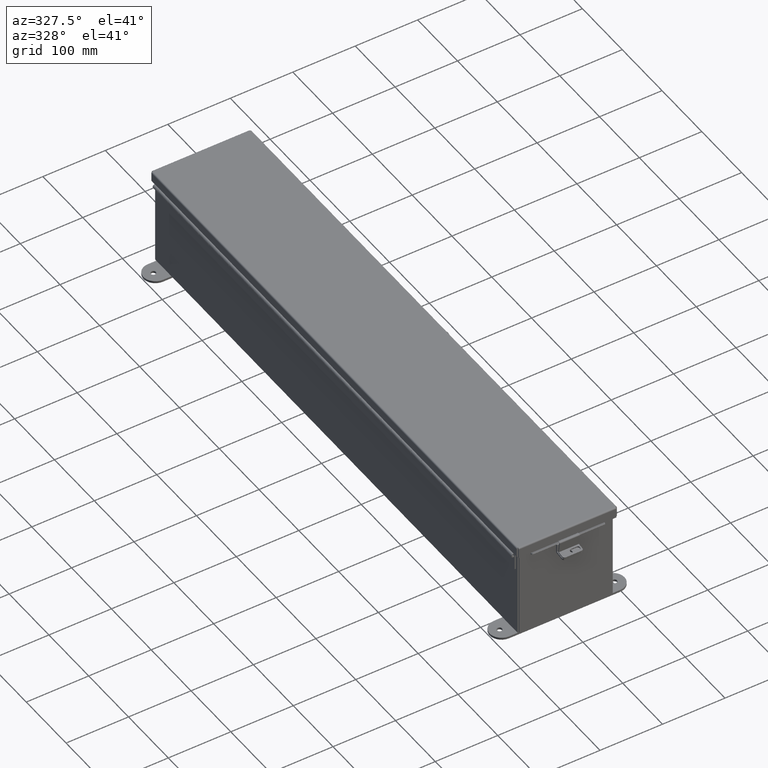
[diagram: clean part render]
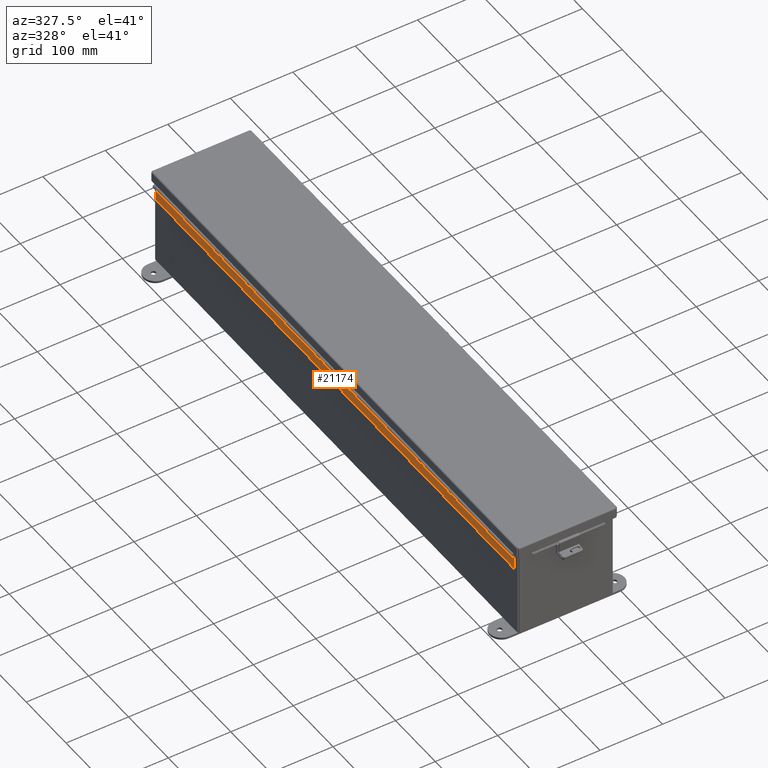
[diagram: same view with one face highlighted and labeled with its STEP entity id]
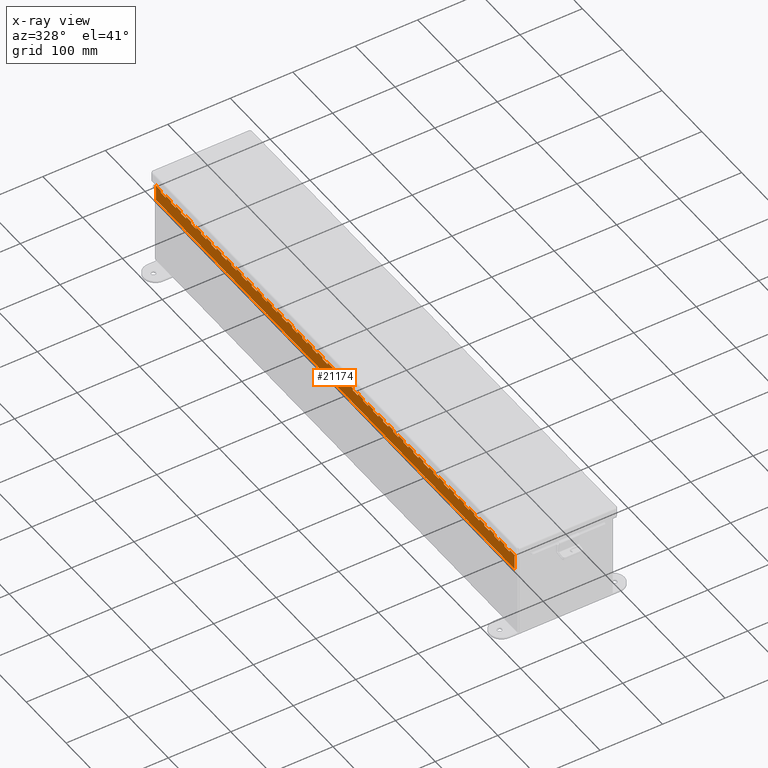
[diagram: x-ray of the same camera — body ghosted, the highlighted face saturated]
A machine part, auxiliary view. The second image highlights one B-rep face of the part: STEP entity #21174.
The next image is the same camera in x-ray: the body ghosted, the highlighted face saturated — about 0% of this face is hidden behind the body in this view.
In plain terms, the highlighted planar face has unit normal (1, -0, 0).
Its self-contained STEP definition (entity closure, byte-faithful):
#25 = VECTOR ( 'NONE', #17101, 39.37007874015748100 ) ;
#58 = LINE ( 'NONE', #17921, #22982 ) ;
#101 = ORIENTED_EDGE ( 'NONE', *, *, #4350, .F. ) ;
#114 = LINE ( 'NONE', #10625, #10822 ) ;
#118 = DIRECTION ( 'NONE',  ( -1.000000000000000000, 0.0000000000000000000, 0.0000000000000000000 ) ) ;
#140 = LINE ( 'NONE', #10224, #12299 ) ;
#147 = CARTESIAN_POINT ( 'NONE',  ( 0.1365000000000000100, 26.49999999999999300, -1.297218019791475500E-016 ) ) ;
#159 = VECTOR ( 'NONE', #24603, 39.37007874015748100 ) ;
#167 = CARTESIAN_POINT ( 'NONE',  ( 0.0000000000000000000, 31.99999999999998900, 2.042636892962690100E-016 ) ) ;
#175 = CARTESIAN_POINT ( 'NONE',  ( 0.2729999999999995200, 24.49999999999998900, 6.808789643208967800E-016 ) ) ;
#176 = CARTESIAN_POINT ( 'NONE',  ( 0.2730000000000000200, -22.00000000000000000, 1.497933721505972900E-015 ) ) ;
#179 = DIRECTION ( 'NONE',  ( 0.0000000000000000000, 1.000000000000000000, -6.810147738116168400E-017 ) ) ;
#189 = EDGE_CURVE ( 'NONE', #9809, #26513, #28344, .T. ) ;
#202 = CARTESIAN_POINT ( 'NONE',  ( 0.0000000000000000000, 26.99999999999998900, 5.447031714567174300E-016 ) ) ;
#220 = CARTESIAN_POINT ( 'NONE',  ( 0.1365000000000000100, 21.99999999999998900, 1.750243937338047600E-016 ) ) ;
#229 = CARTESIAN_POINT ( 'NONE',  ( 0.1365000000000000100, 30.49999999999998900, -4.020733877075062400E-016 ) ) ;
#272 = LINE ( 'NONE', #1149, #16397 ) ;
#291 = ORIENTED_EDGE ( 'NONE', *, *, #18941, .F. ) ;
#316 = VERTEX_POINT ( 'NONE', #17594 ) ;
#343 = VERTEX_POINT ( 'NONE', #29221 ) ;
#360 = DIRECTION ( 'NONE',  ( 0.0000000000000000000, 1.000000000000000000, -6.810147738116168400E-017 ) ) ;
#385 = VECTOR ( 'NONE', #6811, 39.37007874015748100 ) ;
#406 = VERTEX_POINT ( 'NONE', #6535 ) ;
#435 = DIRECTION ( 'NONE',  ( 0.0000000000000000000, 1.000000000000000000, -6.810147738116168400E-017 ) ) ;
#436 = ORIENTED_EDGE ( 'NONE', *, *, #20160, .F. ) ;
#448 = CARTESIAN_POINT ( 'NONE',  ( 0.2730000000000000200, 3.676451771755217300E-018, 0.0000000000000000000 ) ) ;
#450 = CARTESIAN_POINT ( 'NONE',  ( 0.0000000000000000000, 11.49999999999999300, 1.566021617938062600E-015 ) ) ;
#460 = DIRECTION ( 'NONE',  ( -1.000000000000000000, 0.0000000000000000000, 0.0000000000000000000 ) ) ;
#473 = DIRECTION ( 'NONE',  ( -1.000000000000000000, 0.0000000000000000000, 0.0000000000000000000 ) ) ;
#479 = EDGE_CURVE ( 'NONE', #17374, #17714, #19712, .T. ) ;
#507 = CARTESIAN_POINT ( 'NONE',  ( 0.2729999999999995200, 30.99999999999999300, 2.723515857283587100E-016 ) ) ;
#508 = VECTOR ( 'NONE', #29402, 39.37007874015748100 ) ;
#561 = VECTOR ( 'NONE', #26720, 39.37007874015748100 ) ;
#576 = VERTEX_POINT ( 'NONE', #13955 ) ;
#604 = ORIENTED_EDGE ( 'NONE', *, *, #18945, .F. ) ;
#609 = CARTESIAN_POINT ( 'NONE',  ( 0.1365000000000000100, -4.256342336322573700E-018, 1.673256896119361100E-015 ) ) ;
#626 = EDGE_CURVE ( 'NONE', #1206, #6858, #9984, .T. ) ;
#675 = CARTESIAN_POINT ( 'NONE',  ( 0.2729999999999995200, 12.99999999999999300, 1.497933721505972900E-015 ) ) ;
#681 = CARTESIAN_POINT ( 'NONE',  ( 0.0000000000000000000, 24.49999999999998900, 6.808789643208967800E-016 ) ) ;
#692 = VECTOR ( 'NONE', #15601, 39.37007874015748100 ) ;
#699 = CARTESIAN_POINT ( 'NONE',  ( 0.2729999999999995200, 1.499999999999992200, 2.246900582258959400E-015 ) ) ;
#713 = VECTOR ( 'NONE', #25238, 39.37007874015748100 ) ;
#749 = CARTESIAN_POINT ( 'NONE',  ( 0.2729999999999995200, 27.99999999999999300, 4.766152750246277500E-016 ) ) ;
#763 = CARTESIAN_POINT ( 'NONE',  ( 0.2729999999999995200, 27.49999999999999300, 4.766152750246277500E-016 ) ) ;
#783 = DIRECTION ( 'NONE',  ( -1.346685630679566500E-017, 1.000000000000000000, 0.0000000000000000000 ) ) ;
#821 = LINE ( 'NONE', #8443, #28431 ) ;
#869 = ORIENTED_EDGE ( 'NONE', *, *, #28266, .F. ) ;
#1015 = VECTOR ( 'NONE', #8700, 39.37007874015748100 ) ;
#1041 = EDGE_CURVE ( 'NONE', #20951, #8730, #22895, .T. ) ;
#1052 = ORIENTED_EDGE ( 'NONE', *, *, #24584, .F. ) ;
#1079 = VERTEX_POINT ( 'NONE', #3520 ) ;
#1109 = VECTOR ( 'NONE', #12950, 39.37007874015748100 ) ;
#1111 = DIRECTION ( 'NONE',  ( -1.000000000000000000, 0.0000000000000000000, 0.0000000000000000000 ) ) ;
#1113 = DIRECTION ( 'NONE',  ( 0.0000000000000000000, 1.000000000000000000, -6.810147738116168400E-017 ) ) ;
#1142 = VERTEX_POINT ( 'NONE', #12906 ) ;
#1148 = VERTEX_POINT ( 'NONE', #24449 ) ;
#1149 = CARTESIAN_POINT ( 'NONE',  ( 0.0000000000000000000, 22.99999999999999300, 8.170547571850760400E-016 ) ) ;
#1152 = CARTESIAN_POINT ( 'NONE',  ( 0.2729999999999995200, 22.49999999999999300, 8.170547571850760400E-016 ) ) ;
#1189 = LINE ( 'NONE', #24157, #6542 ) ;
#1206 = VERTEX_POINT ( 'NONE', #22234 ) ;
#1244 = EDGE_CURVE ( 'NONE', #28502, #8926, #7095, .T. ) ;
#1251 = CARTESIAN_POINT ( 'NONE',  ( 0.2729999999999995200, 31.49999999999999300, 2.042636892962690100E-016 ) ) ;
#1266 = VECTOR ( 'NONE', #3069, 39.37007874015748100 ) ;
#1299 = LINE ( 'NONE', #11196, #13473 ) ;
#1307 = LINE ( 'NONE', #14015, #14216 ) ;
#1320 = ORIENTED_EDGE ( 'NONE', *, *, #17619, .F. ) ;
#1350 = CARTESIAN_POINT ( 'NONE',  ( 0.2729999999999995200, 11.49999999999999300, 1.566021617938062600E-015 ) ) ;
#1351 = LINE ( 'NONE', #9821, #25030 ) ;
#1428 = VECTOR ( 'NONE', #25997, 39.37007874015748100 ) ;
#1510 = CARTESIAN_POINT ( 'NONE',  ( 0.0000000000000000000, 15.49999999999999100, 1.293670032209703900E-015 ) ) ;
#1570 = EDGE_CURVE ( 'NONE', #5348, #21947, #6002, .T. ) ;
#1654 = DIRECTION ( 'NONE',  ( -1.000000000000000000, 0.0000000000000000000, 0.0000000000000000000 ) ) ;
#1659 = ORIENTED_EDGE ( 'NONE', *, *, #15027, .T. ) ;
#1728 = EDGE_CURVE ( 'NONE', #5221, #15319, #25388, .T. ) ;
#1732 = VERTEX_POINT ( 'NONE', #26543 ) ;
#1771 = LINE ( 'NONE', #202, #19355 ) ;
#1800 = EDGE_CURVE ( 'NONE', #1826, #13469, #17120, .T. ) ;
#1812 = CARTESIAN_POINT ( 'NONE',  ( 0.2729999999999995200, 3.499999999999990700, 2.110724789394780000E-015 ) ) ;
#1820 = EDGE_CURVE ( 'NONE', #24632, #29169, #272, .T. ) ;
#1826 = VERTEX_POINT ( 'NONE', #1251 ) ;
#1877 = CARTESIAN_POINT ( 'NONE',  ( 0.0000000000000000000, 30.49999999999998900, 2.723515857283587100E-016 ) ) ;
#1910 = VECTOR ( 'NONE', #10030, 39.37007874015748100 ) ;
#1922 = CARTESIAN_POINT ( 'NONE',  ( 0.2729999999999995200, 15.99999999999999300, 1.293670032209703900E-015 ) ) ;
#1938 = CARTESIAN_POINT ( 'NONE',  ( 0.2730000000000000200, -9.000000000000000000, 6.127910678888071100E-016 ) ) ;
#1941 = CARTESIAN_POINT ( 'NONE',  ( 0.1365000000000000100, -4.256342336322573700E-018, 1.673256896119361100E-015 ) ) ;
#1956 = VERTEX_POINT ( 'NONE', #4043 ) ;
#2012 = EDGE_CURVE ( 'NONE', #15889, #15836, #6691, .T. ) ;
#2050 = DIRECTION ( 'NONE',  ( -1.000000000000000000, 0.0000000000000000000, -0.0000000000000000000 ) ) ;
#2060 = EDGE_CURVE ( 'NONE', #16999, #25906, #28941, .T. ) ;
#2067 = VERTEX_POINT ( 'NONE', #25095 ) ;
#2072 = CARTESIAN_POINT ( 'NONE',  ( 0.0000000000000000000, 6.999999999999993800, 1.906461100098511000E-015 ) ) ;
#2094 = ORIENTED_EDGE ( 'NONE', *, *, #25670, .F. ) ;
#2120 = VERTEX_POINT ( 'NONE', #9134 ) ;
#2192 = LINE ( 'NONE', #22685, #19751 ) ;
#2290 = LINE ( 'NONE', #2357, #25971 ) ;
#2298 = CARTESIAN_POINT ( 'NONE',  ( 0.2729999999999995200, 34.99999999999999300, 0.0000000000000000000 ) ) ;
#2357 = CARTESIAN_POINT ( 'NONE',  ( 0.1365000000000000100, -4.256342336322573700E-018, 1.673256896119361100E-015 ) ) ;
#2372 = VERTEX_POINT ( 'NONE', #3212 ) ;
#2388 = ORIENTED_EDGE ( 'NONE', *, *, #3868, .F. ) ;
#2445 = LINE ( 'NONE', #21113, #7808 ) ;
#2496 = ORIENTED_EDGE ( 'NONE', *, *, #25037, .F. ) ;
#2504 = CARTESIAN_POINT ( 'NONE',  ( 0.2729999999999995200, 26.99999999999998900, 5.447031714567174300E-016 ) ) ;
#2539 = VERTEX_POINT ( 'NONE', #14051 ) ;
#2573 = EDGE_CURVE ( 'NONE', #5297, #3210, #5262, .T. ) ;
#2581 = DIRECTION ( 'NONE',  ( -1.000000000000000000, 0.0000000000000000000, 0.0000000000000000000 ) ) ;
#2584 = LINE ( 'NONE', #17244, #26268 ) ;
#2592 = EDGE_CURVE ( 'NONE', #1732, #5865, #26766, .T. ) ;
#2595 = ORIENTED_EDGE ( 'NONE', *, *, #12680, .T. ) ;
#2603 = CARTESIAN_POINT ( 'NONE',  ( 0.2729999999999995200, 0.9999999999999947800, 2.314988478691049100E-015 ) ) ;
#2635 = VECTOR ( 'NONE', #3897, 39.37007874015748100 ) ;
#2715 = VECTOR ( 'NONE', #5776, 39.37007874015748100 ) ;
#2722 = ORIENTED_EDGE ( 'NONE', *, *, #20498, .F. ) ;
#2724 = LINE ( 'NONE', #1510, #20298 ) ;
#2734 = LINE ( 'NONE', #12690, #14197 ) ;
#2749 = CARTESIAN_POINT ( 'NONE',  ( 0.0000000000000000000, 34.99999999999999300, 0.0000000000000000000 ) ) ;
#2751 = EDGE_CURVE ( 'NONE', #10005, #13210, #11663, .T. ) ;
#2757 = CARTESIAN_POINT ( 'NONE',  ( 0.2730000000000000200, -23.99999999999999600, 1.634109514370152100E-015 ) ) ;
#2758 = EDGE_CURVE ( 'NONE', #10971, #9621, #10938, .T. ) ;
#2775 = CARTESIAN_POINT ( 'NONE',  ( 0.1365000000000000100, 34.99999999999999300, -7.102948122212973900E-016 ) ) ;
#2790 = VERTEX_POINT ( 'NONE', #28870 ) ;
#2844 = DIRECTION ( 'NONE',  ( -1.346685630679566500E-017, 1.000000000000000000, 0.0000000000000000000 ) ) ;
#2867 = VERTEX_POINT ( 'NONE', #22240 ) ;
#2878 = CARTESIAN_POINT ( 'NONE',  ( 0.0000000000000000000, 33.99999999999999300, 6.808789643208967800E-017 ) ) ;
#2883 = LINE ( 'NONE', #25407, #8968 ) ;
#2901 = CARTESIAN_POINT ( 'NONE',  ( 0.1365000000000000100, 23.49999999999999300, 7.454188731712149900E-017 ) ) ;
#2902 = FACE_OUTER_BOUND ( 'NONE', #21871, .T. ) ;
#2945 = VECTOR ( 'NONE', #18695, 39.37007874015748100 ) ;
#2962 = CARTESIAN_POINT ( 'NONE',  ( 0.0000000000000000000, 11.99999999999999500, 1.566021617938062600E-015 ) ) ;
#3026 = DIRECTION ( 'NONE',  ( -1.000000000000000000, 0.0000000000000000000, 0.0000000000000000000 ) ) ;
#3031 = VECTOR ( 'NONE', #23897, 39.37007874015748100 ) ;
#3032 = LINE ( 'NONE', #4021, #26714 ) ;
#3069 = DIRECTION ( 'NONE',  ( 0.0000000000000000000, 1.000000000000000000, -6.810147738116168400E-017 ) ) ;
#3087 = CARTESIAN_POINT ( 'NONE',  ( 0.2730000000000000200, -34.00000000000000000, 2.314988478691049100E-015 ) ) ;
#3110 = ORIENTED_EDGE ( 'NONE', *, *, #10259, .F. ) ;
#3120 = CARTESIAN_POINT ( 'NONE',  ( 0.1365000000000000100, 25.49999999999998900, -6.163390554705785700E-017 ) ) ;
#3162 = VECTOR ( 'NONE', #21583, 39.37007874015748100 ) ;
#3177 = VECTOR ( 'NONE', #16478, 39.37007874015748100 ) ;
#3181 = VECTOR ( 'NONE', #27653, 39.37007874015748100 ) ;
#3205 = VERTEX_POINT ( 'NONE', #29643 ) ;
#3210 = VERTEX_POINT ( 'NONE', #15890 ) ;
#3212 = CARTESIAN_POINT ( 'NONE',  ( 0.1365000000000000100, 1.999999999999994000, 1.537053941357038200E-015 ) ) ;
#3265 = CARTESIAN_POINT ( 'NONE',  ( 0.2729999999999995200, 6.499999999999992000, 1.906461100098511000E-015 ) ) ;
#3312 = EDGE_CURVE ( 'NONE', #9192, #5658, #25660, .T. ) ;
#3356 = EDGE_CURVE ( 'NONE', #19223, #14751, #6605, .T. ) ;
#3364 = CARTESIAN_POINT ( 'NONE',  ( 0.2730000000000000200, -13.00000000000000000, 8.851426536171658200E-016 ) ) ;
#3380 = EDGE_CURVE ( 'NONE', #6342, #26479, #5891, .T. ) ;
#3423 = DIRECTION ( 'NONE',  ( -1.346685630679566500E-017, 1.000000000000000000, 0.0000000000000000000 ) ) ;
#3444 = CARTESIAN_POINT ( 'NONE',  ( 0.1365000000000000100, -4.256342336322573700E-018, 1.673256896119361100E-015 ) ) ;
#3520 = CARTESIAN_POINT ( 'NONE',  ( 0.2729999999999995200, 16.49999999999998900, 1.225582135777614200E-015 ) ) ;
#3526 = CARTESIAN_POINT ( 'NONE',  ( 0.2730000000000000200, -26.00000000000000000, 1.770285307234331600E-015 ) ) ;
#3529 = EDGE_CURVE ( 'NONE', #28551, #406, #19873, .T. ) ;
#3538 = DIRECTION ( 'NONE',  ( -1.000000000000000000, 0.0000000000000000000, 0.0000000000000000000 ) ) ;
#3545 = ORIENTED_EDGE ( 'NONE', *, *, #28911, .T. ) ;
#3565 = EDGE_CURVE ( 'NONE', #22331, #22954, #18461, .T. ) ;
#3691 = CARTESIAN_POINT ( 'NONE',  ( 0.2729999999999995200, 13.99999999999999300, 1.429845825073883200E-015 ) ) ;
#3705 = VERTEX_POINT ( 'NONE', #15345 ) ;
#3730 = VECTOR ( 'NONE', #14271, 39.37007874015748100 ) ;
#3743 = VERTEX_POINT ( 'NONE', #24688 ) ;
#3748 = VECTOR ( 'NONE', #10341, 39.37007874015748100 ) ;
#3804 = EDGE_CURVE ( 'NONE', #17288, #12799, #18818, .T. ) ;
#3825 = DIRECTION ( 'NONE',  ( 0.0000000000000000000, 1.000000000000000000, -6.810147738116168400E-017 ) ) ;
#3863 = EDGE_CURVE ( 'NONE', #18612, #22772, #11225, .T. ) ;
#3868 = EDGE_CURVE ( 'NONE', #316, #4433, #5168, .T. ) ;
#3881 = ORIENTED_EDGE ( 'NONE', *, *, #9779, .F. ) ;
#3897 = DIRECTION ( 'NONE',  ( -1.000000000000000000, 0.0000000000000000000, 0.0000000000000000000 ) ) ;
#3905 = CARTESIAN_POINT ( 'NONE',  ( 0.2729999999999995200, 33.99999999999999300, 6.808789643208967800E-017 ) ) ;
#3911 = VECTOR ( 'NONE', #25608, 39.37007874015748100 ) ;
#3929 = CARTESIAN_POINT ( 'NONE',  ( 0.2730000000000000200, -5.000000000000000000, 3.404394821604483900E-016 ) ) ;
#3953 = ORIENTED_EDGE ( 'NONE', *, *, #13686, .F. ) ;
#3955 = CARTESIAN_POINT ( 'NONE',  ( 0.1365000000000000100, 13.49999999999999100, 7.554208516380182000E-016 ) ) ;
#3984 = DIRECTION ( 'NONE',  ( -1.000000000000000000, 0.0000000000000000000, 0.0000000000000000000 ) ) ;
#4016 = LINE ( 'NONE', #10390, #26969 ) ;
#4021 = CARTESIAN_POINT ( 'NONE',  ( 0.0000000000000000000, 25.99999999999999300, 6.127910678888071100E-016 ) ) ;
#4043 = CARTESIAN_POINT ( 'NONE',  ( 0.1365000000000000100, 9.499999999999989300, 1.027772437366377100E-015 ) ) ;
#4097 = ORIENTED_EDGE ( 'NONE', *, *, #28542, .F. ) ;
#4130 = DIRECTION ( 'NONE',  ( -1.000000000000000000, 0.0000000000000000000, 0.0000000000000000000 ) ) ;
#4139 = CARTESIAN_POINT ( 'NONE',  ( 0.1365000000000000100, 27.99999999999999300, -2.335844705531656100E-016 ) ) ;
#4180 = LINE ( 'NONE', #15134, #8812 ) ;
#4201 = EDGE_CURVE ( 'NONE', #22802, #16852, #14805, .T. ) ;
#4219 = DIRECTION ( 'NONE',  ( 0.0000000000000000000, 1.000000000000000000, -6.810147738116168400E-017 ) ) ;
#4238 = CARTESIAN_POINT ( 'NONE',  ( 0.2729999999999995200, 14.99999999999999100, 1.361757928641793600E-015 ) ) ;
#4280 = DIRECTION ( 'NONE',  ( -1.000000000000000000, 0.0000000000000000000, 0.0000000000000000000 ) ) ;
#4285 = EDGE_CURVE ( 'NONE', #26012, #4623, #1189, .T. ) ;
#4323 = ORIENTED_EDGE ( 'NONE', *, *, #28725, .T. ) ;
#4338 = VERTEX_POINT ( 'NONE', #3905 ) ;
#4350 = EDGE_CURVE ( 'NONE', #24651, #2790, #5135, .T. ) ;
#4361 = CARTESIAN_POINT ( 'NONE',  ( 0.1365000000000000100, 25.99999999999999300, -9.738151579084200900E-017 ) ) ;
#4381 = ORIENTED_EDGE ( 'NONE', *, *, #7371, .F. ) ;
#4433 = VERTEX_POINT ( 'NONE', #27066 ) ;
#4441 = CARTESIAN_POINT ( 'NONE',  ( 0.0000000000000000000, 13.49999999999999100, 1.429845825073883200E-015 ) ) ;
#4454 = DIRECTION ( 'NONE',  ( -1.346685630679566500E-017, 1.000000000000000000, 0.0000000000000000000 ) ) ;
#4472 = CARTESIAN_POINT ( 'NONE',  ( 0.2730000000000000200, -31.00000000000000000, 2.110724789394780000E-015 ) ) ;
#4482 = VECTOR ( 'NONE', #19506, 39.37007874015748100 ) ;
#4547 = VECTOR ( 'NONE', #7505, 39.37007874015748100 ) ;
#4558 = DIRECTION ( 'NONE',  ( -1.000000000000000000, 0.0000000000000000000, 0.0000000000000000000 ) ) ;
#4606 = VECTOR ( 'NONE', #8655, 39.37007874015748100 ) ;
#4611 = LINE ( 'NONE', #16796, #28283 ) ;
#4623 = VERTEX_POINT ( 'NONE', #20998 ) ;
#4628 = EDGE_CURVE ( 'NONE', #22125, #26308, #15914, .T. ) ;
#4658 = CARTESIAN_POINT ( 'NONE',  ( 0.1365000000000000100, 6.499999999999992000, 1.232036126662645700E-015 ) ) ;
#4659 = LINE ( 'NONE', #11674, #28321 ) ;
#4680 = CARTESIAN_POINT ( 'NONE',  ( 0.1365000000000000100, -4.256342336322573700E-018, 1.673256896119361100E-015 ) ) ;
#4688 = LINE ( 'NONE', #19573, #27649 ) ;
#4772 = EDGE_CURVE ( 'NONE', #15349, #27269, #140, .T. ) ;
#4833 = DIRECTION ( 'NONE',  ( -1.000000000000000000, 0.0000000000000000000, 0.0000000000000000000 ) ) ;
#4902 = VECTOR ( 'NONE', #26749, 39.37007874015748100 ) ;
#4939 = VECTOR ( 'NONE', #5569, 39.37007874015748100 ) ;
#4962 = ORIENTED_EDGE ( 'NONE', *, *, #20087, .T. ) ;
#5135 = LINE ( 'NONE', #10790, #15879 ) ;
#5168 = LINE ( 'NONE', #22773, #22721 ) ;
#5221 = VERTEX_POINT ( 'NONE', #7622 ) ;
#5232 = CARTESIAN_POINT ( 'NONE',  ( 0.1365000000000000100, -4.256342336322573700E-018, 1.673256896119361100E-015 ) ) ;
#5262 = LINE ( 'NONE', #18792, #10583 ) ;
#5289 = VECTOR ( 'NONE', #4454, 39.37007874015748100 ) ;
#5290 = CARTESIAN_POINT ( 'NONE',  ( 0.1365000000000000100, -4.256342336322573700E-018, 1.673256896119361100E-015 ) ) ;
#5297 = VERTEX_POINT ( 'NONE', #5616 ) ;
#5312 = ORIENTED_EDGE ( 'NONE', *, *, #22720, .F. ) ;
#5315 = CARTESIAN_POINT ( 'NONE',  ( 0.1365000000000000100, 6.999999999999993800, 1.196546554451229800E-015 ) ) ;
#5346 = CARTESIAN_POINT ( 'NONE',  ( 0.2729999999999995200, 2.999999999999993300, 2.178812685826869700E-015 ) ) ;
#5348 = VERTEX_POINT ( 'NONE', #26490 ) ;
#5366 = LINE ( 'NONE', #16199, #22200 ) ;
#5374 = LINE ( 'NONE', #23141, #29034 ) ;
#5415 = LINE ( 'NONE', #3929, #16166 ) ;
#5422 = VECTOR ( 'NONE', #18553, 39.37007874015748100 ) ;
#5457 = CARTESIAN_POINT ( 'NONE',  ( 0.2730000000000000200, -21.00000000000000000, 1.429845825073883200E-015 ) ) ;
#5540 = EDGE_CURVE ( 'NONE', #17021, #6357, #1299, .T. ) ;
#5548 = VECTOR ( 'NONE', #6660, 39.37007874015748100 ) ;
#5562 = CARTESIAN_POINT ( 'NONE',  ( 0.0000000000000000000, 15.99999999999999300, 1.293670032209703900E-015 ) ) ;
#5567 = VECTOR ( 'NONE', #16334, 39.37007874015748100 ) ;
#5569 = DIRECTION ( 'NONE',  ( -1.346685630679566500E-017, 1.000000000000000000, 0.0000000000000000000 ) ) ;
#5581 = ORIENTED_EDGE ( 'NONE', *, *, #14967, .T. ) ;
#5616 = CARTESIAN_POINT ( 'NONE',  ( 0.1365000000000000100, 23.99999999999999300, 3.882143897148137200E-017 ) ) ;
#5622 = VERTEX_POINT ( 'NONE', #2298 ) ;
#5653 = ORIENTED_EDGE ( 'NONE', *, *, #4772, .T. ) ;
#5658 = VERTEX_POINT ( 'NONE', #13903 ) ;
#5716 = VERTEX_POINT ( 'NONE', #20934 ) ;
#5727 = ORIENTED_EDGE ( 'NONE', *, *, #9381, .T. ) ;
#5759 = CARTESIAN_POINT ( 'NONE',  ( 0.2729999999999995200, 28.99999999999999300, 4.085273785925380200E-016 ) ) ;
#5773 = VERTEX_POINT ( 'NONE', #11993 ) ;
#5776 = DIRECTION ( 'NONE',  ( -1.000000000000000000, 0.0000000000000000000, 0.0000000000000000000 ) ) ;
#5777 = CARTESIAN_POINT ( 'NONE',  ( 0.2729999999999995200, 18.99999999999999300, 1.089406342913434900E-015 ) ) ;
#5785 = LINE ( 'NONE', #20235, #16556 ) ;
#5802 = VECTOR ( 'NONE', #15869, 39.37007874015748100 ) ;
#5838 = EDGE_CURVE ( 'NONE', #28820, #22331, #23873, .T. ) ;
#5865 = VERTEX_POINT ( 'NONE', #9887 ) ;
#5884 = VERTEX_POINT ( 'NONE', #12387 ) ;
#5891 = LINE ( 'NONE', #14181, #29584 ) ;
#5907 = VECTOR ( 'NONE', #16902, 39.37007874015748100 ) ;
#5955 = CARTESIAN_POINT ( 'NONE',  ( 0.2729999999999995200, 26.49999999999999300, 5.447031714567174300E-016 ) ) ;
#5956 = DIRECTION ( 'NONE',  ( -1.000000000000000000, 0.0000000000000000000, 0.0000000000000000000 ) ) ;
#5962 = EDGE_CURVE ( 'NONE', #343, #9809, #14895, .T. ) ;
#6002 = LINE ( 'NONE', #3087, #11376 ) ;
#6092 = LINE ( 'NONE', #7866, #25 ) ;
#6117 = EDGE_CURVE ( 'NONE', #5716, #17110, #9851, .T. ) ;
#6143 = CARTESIAN_POINT ( 'NONE',  ( 0.2729999999999995200, 4.499999999999989300, 2.042636892962690400E-015 ) ) ;
#6159 = VERTEX_POINT ( 'NONE', #15834 ) ;
#6189 = ORIENTED_EDGE ( 'NONE', *, *, #1041, .F. ) ;
#6221 = ORIENTED_EDGE ( 'NONE', *, *, #7256, .F. ) ;
#6226 = LINE ( 'NONE', #13153, #159 ) ;
#6227 = EDGE_CURVE ( 'NONE', #576, #406, #26016, .T. ) ;
#6272 = VECTOR ( 'NONE', #27688, 39.37007874015748100 ) ;
#6342 = VERTEX_POINT ( 'NONE', #507 ) ;
#6357 = VERTEX_POINT ( 'NONE', #2901 ) ;
#6373 = LINE ( 'NONE', #14563, #28626 ) ;
#6407 = CARTESIAN_POINT ( 'NONE',  ( 0.1365000000000000100, 18.99999999999999300, 3.793288258772897100E-016 ) ) ;
#6437 = CARTESIAN_POINT ( 'NONE',  ( 0.2729999999999995200, 4.999999999999991100, 2.042636892962690400E-015 ) ) ;
#6509 = ORIENTED_EDGE ( 'NONE', *, *, #6559, .T. ) ;
#6517 = LINE ( 'NONE', #13556, #5802 ) ;
#6535 = CARTESIAN_POINT ( 'NONE',  ( 0.1365000000000000100, 12.49999999999999100, 8.235087480701079700E-016 ) ) ;
#6542 = VECTOR ( 'NONE', #28766, 39.37007874015748100 ) ;
#6544 = CARTESIAN_POINT ( 'NONE',  ( 0.1365000000000000100, 7.999999999999993800, 1.128445077070068200E-015 ) ) ;
#6550 = DIRECTION ( 'NONE',  ( -1.346685630679566500E-017, 1.000000000000000000, 0.0000000000000000000 ) ) ;
#6559 = EDGE_CURVE ( 'NONE', #316, #9655, #12696, .T. ) ;
#6574 = LINE ( 'NONE', #28443, #11952 ) ;
#6605 = LINE ( 'NONE', #14076, #18845 ) ;
#6641 = CARTESIAN_POINT ( 'NONE',  ( 0.1365000000000000100, 4.499999999999989300, 1.368211919526825500E-015 ) ) ;
#6660 = DIRECTION ( 'NONE',  ( -1.000000000000000000, 0.0000000000000000000, 0.0000000000000000000 ) ) ;
#6691 = LINE ( 'NONE', #27104, #12072 ) ;
#6721 = DIRECTION ( 'NONE',  ( -1.000000000000000000, 0.0000000000000000000, 0.0000000000000000000 ) ) ;
#6728 = DIRECTION ( 'NONE',  ( -1.346685630679566500E-017, 1.000000000000000000, 0.0000000000000000000 ) ) ;
#6755 = LINE ( 'NONE', #13285, #692 ) ;
#6787 = VECTOR ( 'NONE', #118, 39.37007874015748100 ) ;
#6811 = DIRECTION ( 'NONE',  ( 0.0000000000000000000, 1.000000000000000000, -6.810147738116168400E-017 ) ) ;
#6823 = VECTOR ( 'NONE', #27421, 39.37007874015748100 ) ;
#6844 = DIRECTION ( 'NONE',  ( 0.0000000000000000000, 1.000000000000000000, -6.810147738116168400E-017 ) ) ;
#6858 = VERTEX_POINT ( 'NONE', #25741 ) ;
#6905 = CARTESIAN_POINT ( 'NONE',  ( 0.1365000000000000100, 16.49999999999998900, 5.511571623417492600E-016 ) ) ;
#6955 = CARTESIAN_POINT ( 'NONE',  ( 0.1365000000000000100, 3.999999999999992500, 1.400850986594715000E-015 ) ) ;
#7009 = CARTESIAN_POINT ( 'NONE',  ( 0.2730000000000000200, -7.000000000000000000, 4.766152750246277500E-016 ) ) ;
#7015 = EDGE_CURVE ( 'NONE', #22050, #8926, #11224, .T. ) ;
#7060 = VERTEX_POINT ( 'NONE', #28710 ) ;
#7095 = LINE ( 'NONE', #10889, #1015 ) ;
#7170 = VECTOR ( 'NONE', #20710, 39.37007874015748100 ) ;
#7227 = LINE ( 'NONE', #13393, #24090 ) ;
#7244 = CARTESIAN_POINT ( 'NONE',  ( 0.0000000000000000000, 24.99999999999999300, 6.808789643208967800E-016 ) ) ;
#7256 = EDGE_CURVE ( 'NONE', #28423, #7921, #29164, .T. ) ;
#7298 = ORIENTED_EDGE ( 'NONE', *, *, #21381, .F. ) ;
#7318 = VECTOR ( 'NONE', #8935, 39.37007874015748100 ) ;
#7341 = CARTESIAN_POINT ( 'NONE',  ( 0.2730000000000000200, -15.00000000000000000, 1.021318446481345200E-015 ) ) ;
#7353 = DIRECTION ( 'NONE',  ( -1.000000000000000000, 0.0000000000000000000, 0.0000000000000000000 ) ) ;
#7371 = EDGE_CURVE ( 'NONE', #1079, #11189, #14804, .T. ) ;
#7447 = ORIENTED_EDGE ( 'NONE', *, *, #21938, .F. ) ;
#7457 = EDGE_CURVE ( 'NONE', #28820, #9375, #12634, .T. ) ;
#7505 = DIRECTION ( 'NONE',  ( -1.000000000000000000, 0.0000000000000000000, 0.0000000000000000000 ) ) ;
#7511 = VECTOR ( 'NONE', #13561, 39.37007874015748100 ) ;
#7550 = ORIENTED_EDGE ( 'NONE', *, *, #1728, .F. ) ;
#7578 = LINE ( 'NONE', #11491, #19067 ) ;
#7622 = CARTESIAN_POINT ( 'NONE',  ( 0.2729999999999995200, 13.49999999999999100, 1.429845825073883200E-015 ) ) ;
#7687 = DIRECTION ( 'NONE',  ( -1.346685630679566500E-017, 1.000000000000000000, 0.0000000000000000000 ) ) ;
#7706 = VECTOR ( 'NONE', #11603, 39.37007874015748100 ) ;
#7741 = CARTESIAN_POINT ( 'NONE',  ( 0.2729999999999995200, 20.99999999999999600, 9.532305500492555000E-016 ) ) ;
#7794 = VERTEX_POINT ( 'NONE', #3955 ) ;
#7808 = VECTOR ( 'NONE', #14284, 39.37007874015748100 ) ;
#7825 = CARTESIAN_POINT ( 'NONE',  ( 0.1365000000000000100, 22.99999999999999300, 1.069229163526429400E-016 ) ) ;
#7849 = CARTESIAN_POINT ( 'NONE',  ( 0.0000000000000000000, 12.49999999999999100, 1.497933721505972900E-015 ) ) ;
#7851 = CARTESIAN_POINT ( 'NONE',  ( 0.1365000000000000100, -4.256342336322573700E-018, 1.673256896119361100E-015 ) ) ;
#7855 = ORIENTED_EDGE ( 'NONE', *, *, #7998, .F. ) ;
#7858 = DIRECTION ( 'NONE',  ( -1.000000000000000000, 0.0000000000000000000, 0.0000000000000000000 ) ) ;
#7866 = CARTESIAN_POINT ( 'NONE',  ( 0.1365000000000000100, -4.256342336322573700E-018, 1.673256896119361100E-015 ) ) ;
#7921 = VERTEX_POINT ( 'NONE', #6641 ) ;
#7940 = EDGE_CURVE ( 'NONE', #27628, #1206, #6517, .T. ) ;
#7956 = CARTESIAN_POINT ( 'NONE',  ( 0.0000000000000000000, 32.99999999999999300, 1.361757928641793600E-016 ) ) ;
#7970 = DIRECTION ( 'NONE',  ( -1.346685630679566500E-017, 1.000000000000000000, 0.0000000000000000000 ) ) ;
#7995 = VECTOR ( 'NONE', #1113, 39.37007874015748100 ) ;
#7998 = EDGE_CURVE ( 'NONE', #20183, #1956, #10445, .T. ) ;
#8000 = CARTESIAN_POINT ( 'NONE',  ( 0.1365000000000000100, 28.99999999999999300, -3.016859479343272100E-016 ) ) ;
#8003 = LINE ( 'NONE', #19187, #1910 ) ;
#8040 = CARTESIAN_POINT ( 'NONE',  ( 0.1365000000000000100, -4.256342336322573700E-018, 1.673256896119361100E-015 ) ) ;
#8090 = EDGE_CURVE ( 'NONE', #26134, #20787, #19798, .T. ) ;
#8152 = CARTESIAN_POINT ( 'NONE',  ( 0.1365000000000000100, 20.99999999999999600, 2.431258711149660700E-016 ) ) ;
#8228 = ORIENTED_EDGE ( 'NONE', *, *, #2758, .F. ) ;
#8315 = CARTESIAN_POINT ( 'NONE',  ( 0.1365000000000000100, 34.49999999999999300, -6.744249734358649500E-016 ) ) ;
#8382 = DIRECTION ( 'NONE',  ( 0.0000000000000000000, 1.000000000000000000, -6.810147738116168400E-017 ) ) ;
#8443 = CARTESIAN_POINT ( 'NONE',  ( 0.0000000000000000000, 16.49999999999998900, 1.225582135777614200E-015 ) ) ;
#8487 = ORIENTED_EDGE ( 'NONE', *, *, #11006, .T. ) ;
#8525 = ORIENTED_EDGE ( 'NONE', *, *, #14210, .F. ) ;
#8572 = CARTESIAN_POINT ( 'NONE',  ( 0.2729999999999995200, 17.99999999999999300, 1.157494239345524500E-015 ) ) ;
#8577 = CARTESIAN_POINT ( 'NONE',  ( 0.2729999999999995200, 14.49999999999998900, 1.361757928641793600E-015 ) ) ;
#8590 = VERTEX_POINT ( 'NONE', #2504 ) ;
#8655 = DIRECTION ( 'NONE',  ( -1.000000000000000000, 0.0000000000000000000, 0.0000000000000000000 ) ) ;
#8684 = EDGE_CURVE ( 'NONE', #5884, #343, #5415, .T. ) ;
#8688 = DIRECTION ( 'NONE',  ( -1.000000000000000000, 0.0000000000000000000, 0.0000000000000000000 ) ) ;
#8700 = DIRECTION ( 'NONE',  ( -1.000000000000000000, 0.0000000000000000000, 0.0000000000000000000 ) ) ;
#8717 = VECTOR ( 'NONE', #26110, 39.37007874015748100 ) ;
#8730 = VERTEX_POINT ( 'NONE', #4139 ) ;
#8781 = DIRECTION ( 'NONE',  ( 0.0000000000000000000, 1.000000000000000000, -6.810147738116168400E-017 ) ) ;
#8812 = VECTOR ( 'NONE', #28891, 39.37007874015748100 ) ;
#8874 = EDGE_CURVE ( 'NONE', #21012, #23697, #12557, .T. ) ;
#8892 = VERTEX_POINT ( 'NONE', #6905 ) ;
#8926 = VERTEX_POINT ( 'NONE', #27690 ) ;
#8935 = DIRECTION ( 'NONE',  ( -1.346685630679566500E-017, 1.000000000000000000, 0.0000000000000000000 ) ) ;
#8940 = VERTEX_POINT ( 'NONE', #14027 ) ;
#8968 = VECTOR ( 'NONE', #18496, 39.37007874015748100 ) ;
#8971 = ORIENTED_EDGE ( 'NONE', *, *, #5540, .T. ) ;
#9095 = ORIENTED_EDGE ( 'NONE', *, *, #24607, .F. ) ;
#9130 = ORIENTED_EDGE ( 'NONE', *, *, #17726, .F. ) ;
#9134 = CARTESIAN_POINT ( 'NONE',  ( 0.1365000000000000100, 10.99999999999999500, 9.241406449265830300E-016 ) ) ;
#9192 = VERTEX_POINT ( 'NONE', #8000 ) ;
#9253 = LINE ( 'NONE', #7851, #3162 ) ;
#9282 = CARTESIAN_POINT ( 'NONE',  ( 0.0000000000000000000, 2.999999999999993300, 2.178812685826869700E-015 ) ) ;
#9314 = VECTOR ( 'NONE', #3825, 39.37007874015748100 ) ;
#9375 = VERTEX_POINT ( 'NONE', #13288 ) ;
#9378 = CARTESIAN_POINT ( 'NONE',  ( 0.2729999999999995200, 1.999999999999994000, 2.246900582258959400E-015 ) ) ;
#9381 = EDGE_CURVE ( 'NONE', #16999, #5773, #58, .T. ) ;
#9460 = ORIENTED_EDGE ( 'NONE', *, *, #28402, .F. ) ;
#9462 = LINE ( 'NONE', #27420, #26348 ) ;
#9478 = CARTESIAN_POINT ( 'NONE',  ( 0.1365000000000000100, 8.499999999999991100, 1.095860333798466800E-015 ) ) ;
#9605 = DIRECTION ( 'NONE',  ( -1.000000000000000000, 0.0000000000000000000, 0.0000000000000000000 ) ) ;
#9621 = VERTEX_POINT ( 'NONE', #25751 ) ;
#9643 = DIRECTION ( 'NONE',  ( -1.346685630679566500E-017, 1.000000000000000000, 0.0000000000000000000 ) ) ;
#9655 = VERTEX_POINT ( 'NONE', #28066 ) ;
#9723 = LINE ( 'NONE', #15627, #27338 ) ;
#9779 = EDGE_CURVE ( 'NONE', #15643, #13291, #6092, .T. ) ;
#9809 = VERTEX_POINT ( 'NONE', #12566 ) ;
#9821 = CARTESIAN_POINT ( 'NONE',  ( 0.0000000000000000000, 9.999999999999991100, 1.702197410802242200E-015 ) ) ;
#9841 = VECTOR ( 'NONE', #28614, 39.37007874015748100 ) ;
#9851 = LINE ( 'NONE', #18055, #22046 ) ;
#9860 = CARTESIAN_POINT ( 'NONE',  ( 0.2729999999999995200, 17.49999999999999300, 1.157494239345524500E-015 ) ) ;
#9887 = CARTESIAN_POINT ( 'NONE',  ( 0.2729999999999995200, 19.99999999999999300, 1.021318446481345200E-015 ) ) ;
#9897 = ORIENTED_EDGE ( 'NONE', *, *, #28319, .F. ) ;
#9921 = CARTESIAN_POINT ( 'NONE',  ( 0.2730000000000000200, -27.00000000000000000, 1.838373203666421300E-015 ) ) ;
#9975 = CARTESIAN_POINT ( 'NONE',  ( 0.2730000000000000200, -2.000000000000000000, 1.361757928641793600E-016 ) ) ;
#9984 = LINE ( 'NONE', #7244, #3911 ) ;
#10005 = VERTEX_POINT ( 'NONE', #6437 ) ;
#10030 = DIRECTION ( 'NONE',  ( 0.0000000000000000000, 1.000000000000000000, -6.810147738116168400E-017 ) ) ;
#10036 = EDGE_CURVE ( 'NONE', #8940, #4623, #25479, .T. ) ;
#10055 = ORIENTED_EDGE ( 'NONE', *, *, #28625, .F. ) ;
#10102 = CARTESIAN_POINT ( 'NONE',  ( 1.136500000000000100, 0.0000000000000000000, 0.0000000000000000000 ) ) ;
#10115 = ORIENTED_EDGE ( 'NONE', *, *, #13132, .T. ) ;
#10132 = ORIENTED_EDGE ( 'NONE', *, *, #20768, .F. ) ;
#10143 = CARTESIAN_POINT ( 'NONE',  ( 0.1365000000000000100, 32.99999999999999300, -5.740918574589741900E-016 ) ) ;
#10169 = VECTOR ( 'NONE', #14490, 39.37007874015748100 ) ;
#10202 = LINE ( 'NONE', #27960, #27097 ) ;
#10208 = VECTOR ( 'NONE', #12461, 39.37007874015748100 ) ;
#10210 = ORIENTED_EDGE ( 'NONE', *, *, #479, .F. ) ;
#10224 = CARTESIAN_POINT ( 'NONE',  ( 0.0000000000000000000, 28.49999999999999300, 4.085273785925380200E-016 ) ) ;
#10241 = CARTESIAN_POINT ( 'NONE',  ( 0.2729999999999995200, 9.499999999999989300, 1.702197410802242200E-015 ) ) ;
#10259 = EDGE_CURVE ( 'NONE', #2539, #22934, #19009, .T. ) ;
#10293 = ORIENTED_EDGE ( 'NONE', *, *, #3312, .F. ) ;
#10308 = ORIENTED_EDGE ( 'NONE', *, *, #29710, .T. ) ;
#10325 = DIRECTION ( 'NONE',  ( -1.000000000000000000, 0.0000000000000000000, 0.0000000000000000000 ) ) ;
#10338 = EDGE_CURVE ( 'NONE', #24587, #7060, #5366, .T. ) ;
#10341 = DIRECTION ( 'NONE',  ( -1.346685630679566500E-017, 1.000000000000000000, 0.0000000000000000000 ) ) ;
#10367 = EDGE_CURVE ( 'NONE', #22125, #13001, #4659, .T. ) ;
#10371 = DIRECTION ( 'NONE',  ( 1.000000000000000000, 0.0000000000000000000, 0.0000000000000000000 ) ) ;
#10381 = VERTEX_POINT ( 'NONE', #11769 ) ;
#10390 = CARTESIAN_POINT ( 'NONE',  ( 0.1365000000000000100, -4.256342336322573700E-018, 1.673256896119361100E-015 ) ) ;
#10418 = CARTESIAN_POINT ( 'NONE',  ( 0.2729999999999995200, 30.49999999999998900, 2.723515857283587100E-016 ) ) ;
#10430 = ORIENTED_EDGE ( 'NONE', *, *, #25722, .F. ) ;
#10445 = LINE ( 'NONE', #15980, #21926 ) ;
#10480 = DIRECTION ( 'NONE',  ( -1.000000000000000000, 0.0000000000000000000, 0.0000000000000000000 ) ) ;
#10494 = VECTOR ( 'NONE', #12558, 39.37007874015748100 ) ;
#10522 = LINE ( 'NONE', #17195, #4482 ) ;
#10544 = LINE ( 'NONE', #17093, #9841 ) ;
#10582 = DIRECTION ( 'NONE',  ( -1.000000000000000000, 0.0000000000000000000, 0.0000000000000000000 ) ) ;
#10583 = VECTOR ( 'NONE', #435, 39.37007874015748100 ) ;
#10611 = CARTESIAN_POINT ( 'NONE',  ( 0.1365000000000000100, -4.256342336322573700E-018, 1.673256896119361100E-015 ) ) ;
#10613 = VERTEX_POINT ( 'NONE', #5955 ) ;
#10616 = DIRECTION ( 'NONE',  ( -1.000000000000000000, 0.0000000000000000000, 0.0000000000000000000 ) ) ;
#10625 = CARTESIAN_POINT ( 'NONE',  ( 0.0000000000000000000, 8.499999999999991100, 1.770285307234331600E-015 ) ) ;
#10649 = EDGE_CURVE ( 'NONE', #1826, #15060, #26516, .T. ) ;
#10652 = VERTEX_POINT ( 'NONE', #11051 ) ;
#10670 = CARTESIAN_POINT ( 'NONE',  ( 0.0000000000000000000, 14.99999999999999100, 1.361757928641793600E-015 ) ) ;
#10762 = CARTESIAN_POINT ( 'NONE',  ( 0.0000000000000000000, 5.499999999999992900, 1.974548996530600700E-015 ) ) ;
#10775 = ORIENTED_EDGE ( 'NONE', *, *, #17300, .T. ) ;
#10779 = CARTESIAN_POINT ( 'NONE',  ( 0.0000000000000000000, 33.49999999999999300, 6.808789643208967800E-017 ) ) ;
#10790 = CARTESIAN_POINT ( 'NONE',  ( 0.2730000000000000200, -28.00000000000000000, 1.906461100098511000E-015 ) ) ;
#10822 = VECTOR ( 'NONE', #22167, 39.37007874015748100 ) ;
#10848 = EDGE_CURVE ( 'NONE', #15889, #1142, #16086, .T. ) ;
#10852 = CARTESIAN_POINT ( 'NONE',  ( 0.1365000000000000100, 0.9999999999999947800, 1.605155418738199900E-015 ) ) ;
#10889 = CARTESIAN_POINT ( 'NONE',  ( 0.0000000000000000000, 7.499999999999992000, 1.838373203666421300E-015 ) ) ;
#10938 = LINE ( 'NONE', #3526, #28536 ) ;
#10953 = LINE ( 'NONE', #10670, #4902 ) ;
#10971 = VERTEX_POINT ( 'NONE', #18998 ) ;
#10981 = ORIENTED_EDGE ( 'NONE', *, *, #8874, .F. ) ;
#10986 = VECTOR ( 'NONE', #17183, 39.37007874015748100 ) ;
#10994 = CARTESIAN_POINT ( 'NONE',  ( 0.2730000000000000200, -17.00000000000000000, 1.157494239345524500E-015 ) ) ;
#11006 = EDGE_CURVE ( 'NONE', #11975, #23697, #6373, .T. ) ;
#11012 = VECTOR ( 'NONE', #13734, 39.37007874015748100 ) ;
#11022 = DIRECTION ( 'NONE',  ( -1.346685630679566500E-017, 1.000000000000000000, 0.0000000000000000000 ) ) ;
#11038 = CARTESIAN_POINT ( 'NONE',  ( 0.1364999999999999000, 0.0000000000000000000, 0.0000000000000000000 ) ) ;
#11051 = CARTESIAN_POINT ( 'NONE',  ( 0.1365000000000000100, 15.49999999999999100, 6.192450587738388400E-016 ) ) ;
#11098 = DIRECTION ( 'NONE',  ( -1.346685630679566500E-017, 1.000000000000000000, 0.0000000000000000000 ) ) ;
#11113 = ORIENTED_EDGE ( 'NONE', *, *, #1244, .T. ) ;
#11145 = CARTESIAN_POINT ( 'NONE',  ( 0.1365000000000000100, -4.256342336322573700E-018, 1.673256896119361100E-015 ) ) ;
#11167 = VERTEX_POINT ( 'NONE', #10418 ) ;
#11189 = VERTEX_POINT ( 'NONE', #15236 ) ;
#11196 = CARTESIAN_POINT ( 'NONE',  ( 0.0000000000000000000, 23.49999999999999300, 7.489668607529864600E-016 ) ) ;
#11224 = LINE ( 'NONE', #14871, #10494 ) ;
#11225 = LINE ( 'NONE', #11228, #18080 ) ;
#11228 = CARTESIAN_POINT ( 'NONE',  ( 0.1365000000000000100, -4.256342336322573700E-018, 1.673256896119361100E-015 ) ) ;
#11255 = LINE ( 'NONE', #3364, #16655 ) ;
#11376 = VECTOR ( 'NONE', #783, 39.37007874015748100 ) ;
#11418 = ORIENTED_EDGE ( 'NONE', *, *, #24031, .F. ) ;
#11447 = ORIENTED_EDGE ( 'NONE', *, *, #3529, .T. ) ;
#11478 = EDGE_CURVE ( 'NONE', #14566, #19234, #16405, .T. ) ;
#11491 = CARTESIAN_POINT ( 'NONE',  ( 0.0000000000000000000, 3.499999999999990700, 2.110724789394780000E-015 ) ) ;
#11547 = VERTEX_POINT ( 'NONE', #24011 ) ;
#11603 = DIRECTION ( 'NONE',  ( 0.0000000000000000000, 1.000000000000000000, -6.810147738116168400E-017 ) ) ;
#11610 = DIRECTION ( 'NONE',  ( -1.000000000000000000, 0.0000000000000000000, 0.0000000000000000000 ) ) ;
#11615 = VECTOR ( 'NONE', #23509, 39.37007874015748100 ) ;
#11646 = EDGE_CURVE ( 'NONE', #24651, #25027, #19209, .T. ) ;
#11647 = LINE ( 'NONE', #18566, #5567 ) ;
#11663 = LINE ( 'NONE', #14935, #29263 ) ;
#11674 = CARTESIAN_POINT ( 'NONE',  ( 0.0000000000000000000, 10.49999999999999300, 1.634109514370152100E-015 ) ) ;
#11694 = CARTESIAN_POINT ( 'NONE',  ( 0.1365000000000000100, 35.50000000000000000, -7.427211732774715800E-016 ) ) ;
#11698 = ORIENTED_EDGE ( 'NONE', *, *, #4285, .T. ) ;
#11766 = DIRECTION ( 'NONE',  ( -1.000000000000000000, -0.0000000000000000000, -0.0000000000000000000 ) ) ;
#11769 = CARTESIAN_POINT ( 'NONE',  ( 0.1365000000000000100, 33.49999999999999300, -6.063370770037752700E-016 ) ) ;
#11804 = CARTESIAN_POINT ( 'NONE',  ( 0.1365000000000000100, 31.49999999999999300, -4.701612841395959200E-016 ) ) ;
#11808 = VECTOR ( 'NONE', #27231, 39.37007874015748100 ) ;
#11910 = VECTOR ( 'NONE', #27965, 39.37007874015748100 ) ;
#11924 = LINE ( 'NONE', #3444, #23411 ) ;
#11952 = VECTOR ( 'NONE', #17017, 39.37007874015748100 ) ;
#11958 = EDGE_CURVE ( 'NONE', #5622, #22802, #22753, .T. ) ;
#11975 = VERTEX_POINT ( 'NONE', #28029 ) ;
#11993 = CARTESIAN_POINT ( 'NONE',  ( 0.1365000000000000100, 1.499999999999992200, 1.572475608823094300E-015 ) ) ;
#12072 = VECTOR ( 'NONE', #11022, 39.37007874015748100 ) ;
#12106 = DIRECTION ( 'NONE',  ( 0.0000000000000000000, 1.000000000000000000, -6.810147738116168400E-017 ) ) ;
#12109 = CARTESIAN_POINT ( 'NONE',  ( 0.2729999999999995200, 3.999999999999992500, 2.110724789394780000E-015 ) ) ;
#12150 = VECTOR ( 'NONE', #8781, 39.37007874015748100 ) ;
#12164 = ORIENTED_EDGE ( 'NONE', *, *, #18206, .F. ) ;
#12219 = EDGE_CURVE ( 'NONE', #11167, #6342, #23095, .T. ) ;
#12287 = ORIENTED_EDGE ( 'NONE', *, *, #17581, .F. ) ;
#12299 = VECTOR ( 'NONE', #26317, 39.37007874015748100 ) ;
#12315 = LINE ( 'NONE', #17782, #24534 ) ;
#12325 = VECTOR ( 'NONE', #23993, 39.37007874015748100 ) ;
#12339 = EDGE_CURVE ( 'NONE', #22962, #21530, #25631, .T. ) ;
#12345 = EDGE_CURVE ( 'NONE', #5221, #7794, #19525, .T. ) ;
#12387 = CARTESIAN_POINT ( 'NONE',  ( 0.2729999999999995200, 29.49999999999998900, 3.404394821604483900E-016 ) ) ;
#12449 = ORIENTED_EDGE ( 'NONE', *, *, #10367, .T. ) ;
#12461 = DIRECTION ( 'NONE',  ( -1.000000000000000000, 0.0000000000000000000, 0.0000000000000000000 ) ) ;
#12557 = LINE ( 'NONE', #13711, #385 ) ;
#12558 = DIRECTION ( 'NONE',  ( 0.0000000000000000000, 1.000000000000000000, -6.810147738116168400E-017 ) ) ;
#12566 = CARTESIAN_POINT ( 'NONE',  ( 0.1365000000000000100, 29.99999999999999300, -3.697874253154887600E-016 ) ) ;
#12627 = ORIENTED_EDGE ( 'NONE', *, *, #28564, .F. ) ;
#12634 = LINE ( 'NONE', #25646, #11910 ) ;
#12658 = ORIENTED_EDGE ( 'NONE', *, *, #25055, .T. ) ;
#12680 = EDGE_CURVE ( 'NONE', #21614, #2867, #16255, .T. ) ;
#12690 = CARTESIAN_POINT ( 'NONE',  ( 0.0000000000000000000, 0.0000000000000000000, 0.0000000000000000000 ) ) ;
#12696 = LINE ( 'NONE', #10762, #16661 ) ;
#12710 = LINE ( 'NONE', #16804, #1266 ) ;
#12763 = EDGE_CURVE ( 'NONE', #1148, #10381, #20925, .T. ) ;
#12775 = LINE ( 'NONE', #21054, #25001 ) ;
#12799 = VERTEX_POINT ( 'NONE', #14073 ) ;
#12800 = ORIENTED_EDGE ( 'NONE', *, *, #2012, .F. ) ;
#12895 = ORIENTED_EDGE ( 'NONE', *, *, #19426, .F. ) ;
#12906 = CARTESIAN_POINT ( 'NONE',  ( 0.1365000000000000100, 11.49999999999999300, 8.915966445021975500E-016 ) ) ;
#12950 = DIRECTION ( 'NONE',  ( -1.000000000000000000, 0.0000000000000000000, 0.0000000000000000000 ) ) ;
#13001 = VERTEX_POINT ( 'NONE', #17078 ) ;
#13034 = VERTEX_POINT ( 'NONE', #28600 ) ;
#13067 = LINE ( 'NONE', #10994, #19196 ) ;
#13077 = EDGE_CURVE ( 'NONE', #25680, #14821, #19122, .T. ) ;
#13086 = LINE ( 'NONE', #176, #17761 ) ;
#13088 = VERTEX_POINT ( 'NONE', #8152 ) ;
#13102 = DIRECTION ( 'NONE',  ( -1.346685630679566500E-017, 1.000000000000000000, 0.0000000000000000000 ) ) ;
#13117 = ORIENTED_EDGE ( 'NONE', *, *, #1820, .F. ) ;
#13123 = EDGE_CURVE ( 'NONE', #15992, #10005, #18402, .T. ) ;
#13132 = EDGE_CURVE ( 'NONE', #10971, #22772, #114, .T. ) ;
#13135 = EDGE_CURVE ( 'NONE', #1079, #8892, #821, .T. ) ;
#13153 = CARTESIAN_POINT ( 'NONE',  ( 0.0000000000000000000, 2.499999999999991600, 2.178812685826869700E-015 ) ) ;
#13200 = VECTOR ( 'NONE', #13877, 39.37007874015748100 ) ;
#13210 = VERTEX_POINT ( 'NONE', #17866 ) ;
#13285 = CARTESIAN_POINT ( 'NONE',  ( 0.1365000000000000100, -4.256342336322573700E-018, 1.673256896119361100E-015 ) ) ;
#13288 = CARTESIAN_POINT ( 'NONE',  ( 0.1365000000000000100, 32.49999999999999300, -5.382491805716855900E-016 ) ) ;
#13291 = VERTEX_POINT ( 'NONE', #13542 ) ;
#13336 = LINE ( 'NONE', #23149, #24833 ) ;
#13393 = CARTESIAN_POINT ( 'NONE',  ( 0.0000000000000000000, 18.99999999999999300, 1.089406342913434900E-015 ) ) ;
#13455 = PLANE ( 'NONE',  #26357 ) ;
#13469 = VERTEX_POINT ( 'NONE', #14238 ) ;
#13473 = VECTOR ( 'NONE', #27278, 39.37007874015748100 ) ;
#13481 = DIRECTION ( 'NONE',  ( -1.346685630679566500E-017, 1.000000000000000000, 0.0000000000000000000 ) ) ;
#13542 = CARTESIAN_POINT ( 'NONE',  ( 0.1365000000000000100, 3.499999999999990700, 1.436299815958915000E-015 ) ) ;
#13549 = VERTEX_POINT ( 'NONE', #19064 ) ;
#13556 = CARTESIAN_POINT ( 'NONE',  ( 0.2730000000000000200, -10.00000000000000000, 6.808789643208967800E-016 ) ) ;
#13561 = DIRECTION ( 'NONE',  ( -1.346685630679566500E-017, 1.000000000000000000, 0.0000000000000000000 ) ) ;
#13572 = ORIENTED_EDGE ( 'NONE', *, *, #14653, .T. ) ;
#13649 = DIRECTION ( 'NONE',  ( 0.0000000000000000000, 1.000000000000000000, -6.810147738116168400E-017 ) ) ;
#13676 = EDGE_CURVE ( 'NONE', #21166, #21980, #4016, .T. ) ;
#13686 = EDGE_CURVE ( 'NONE', #28578, #9192, #2584, .T. ) ;
#13711 = CARTESIAN_POINT ( 'NONE',  ( 0.1365000000000000100, -4.256342336322573700E-018, 1.673256896119361100E-015 ) ) ;
#13734 = DIRECTION ( 'NONE',  ( -1.346685630679566500E-017, 1.000000000000000000, 0.0000000000000000000 ) ) ;
#13745 = CARTESIAN_POINT ( 'NONE',  ( 0.0000000000000000000, 9.499999999999989300, 1.702197410802242200E-015 ) ) ;
#13845 = ORIENTED_EDGE ( 'NONE', *, *, #15116, .F. ) ;
#13862 = EDGE_CURVE ( 'NONE', #19410, #20787, #5785, .T. ) ;
#13877 = DIRECTION ( 'NONE',  ( 0.0000000000000000000, 1.000000000000000000, -6.810147738116168400E-017 ) ) ;
#13884 = DIRECTION ( 'NONE',  ( -1.346685630679566500E-017, 1.000000000000000000, 0.0000000000000000000 ) ) ;
#13903 = CARTESIAN_POINT ( 'NONE',  ( 0.1365000000000000100, 29.49999999999998900, -3.339854912754165600E-016 ) ) ;
#13922 = CARTESIAN_POINT ( 'NONE',  ( 0.0000000000000000000, 23.99999999999999300, 7.489668607529864600E-016 ) ) ;
#13955 = CARTESIAN_POINT ( 'NONE',  ( 0.1365000000000000100, 11.99999999999999500, 8.560391675454213800E-016 ) ) ;
#13986 = CARTESIAN_POINT ( 'NONE',  ( 0.1365000000000000100, 2.999999999999993300, 1.468952463975876800E-015 ) ) ;
#13987 = DIRECTION ( 'NONE',  ( -1.000000000000000000, 0.0000000000000000000, 0.0000000000000000000 ) ) ;
#14015 = CARTESIAN_POINT ( 'NONE',  ( 0.0000000000000000000, 8.999999999999992900, 1.770285307234331600E-015 ) ) ;
#14027 = CARTESIAN_POINT ( 'NONE',  ( 0.1365000000000000100, 16.99999999999999300, 5.155317806396130500E-016 ) ) ;
#14051 = CARTESIAN_POINT ( 'NONE',  ( 0.1365000000000000100, 13.99999999999999300, 7.198362127830981900E-016 ) ) ;
#14073 = CARTESIAN_POINT ( 'NONE',  ( 0.2729999999999995200, 25.99999999999999300, 6.127910678888071100E-016 ) ) ;
#14076 = CARTESIAN_POINT ( 'NONE',  ( 0.1365000000000000100, -4.256342336322573700E-018, 1.673256896119361100E-015 ) ) ;
#14100 = LINE ( 'NONE', #23780, #8717 ) ;
#14181 = CARTESIAN_POINT ( 'NONE',  ( 0.0000000000000000000, 30.99999999999999300, 2.723515857283587100E-016 ) ) ;
#14197 = VECTOR ( 'NONE', #10371, 39.37007874015748100 ) ;
#14210 = EDGE_CURVE ( 'NONE', #20588, #3205, #25514, .T. ) ;
#14216 = VECTOR ( 'NONE', #16318, 39.37007874015748100 ) ;
#14238 = CARTESIAN_POINT ( 'NONE',  ( 0.2729999999999995200, 31.99999999999998900, 2.042636892962690100E-016 ) ) ;
#14256 = CARTESIAN_POINT ( 'NONE',  ( 0.2730000000000000200, -32.00000000000000000, 2.178812685826869700E-015 ) ) ;
#14271 = DIRECTION ( 'NONE',  ( -1.346685630679566500E-017, 1.000000000000000000, 0.0000000000000000000 ) ) ;
#14284 = DIRECTION ( 'NONE',  ( 0.0000000000000000000, 1.000000000000000000, -6.810147738116168400E-017 ) ) ;
#14363 = VERTEX_POINT ( 'NONE', #4361 ) ;
#14367 = VECTOR ( 'NONE', #8382, 39.37007874015748100 ) ;
#14414 = DIRECTION ( 'NONE',  ( -1.000000000000000000, 0.0000000000000000000, 0.0000000000000000000 ) ) ;
#14456 = ORIENTED_EDGE ( 'NONE', *, *, #3863, .F. ) ;
#14480 = DIRECTION ( 'NONE',  ( 0.0000000000000000000, 1.000000000000000000, -6.810147738116168400E-017 ) ) ;
#14490 = DIRECTION ( 'NONE',  ( -1.000000000000000000, 0.0000000000000000000, 0.0000000000000000000 ) ) ;
#14537 = LINE ( 'NONE', #7009, #6272 ) ;
#14553 = ORIENTED_EDGE ( 'NONE', *, *, #13862, .F. ) ;
#14563 = CARTESIAN_POINT ( 'NONE',  ( 0.0000000000000000000, 34.49999999999999300, 0.0000000000000000000 ) ) ;
#14566 = VERTEX_POINT ( 'NONE', #27917 ) ;
#14627 = EDGE_CURVE ( 'NONE', #17600, #7060, #16144, .T. ) ;
#14639 = VERTEX_POINT ( 'NONE', #23971 ) ;
#14653 = EDGE_CURVE ( 'NONE', #10613, #28931, #4688, .T. ) ;
#14718 = ORIENTED_EDGE ( 'NONE', *, *, #22761, .F. ) ;
#14751 = VERTEX_POINT ( 'NONE', #17561 ) ;
#14804 = LINE ( 'NONE', #27656, #20193 ) ;
#14805 = LINE ( 'NONE', #28569, #7995 ) ;
#14821 = VERTEX_POINT ( 'NONE', #4238 ) ;
#14825 = VECTOR ( 'NONE', #27519, 39.37007874015748100 ) ;
#14849 = DIRECTION ( 'NONE',  ( 0.0000000000000000000, 1.000000000000000000, -6.810147738116168400E-017 ) ) ;
#14871 = CARTESIAN_POINT ( 'NONE',  ( 0.1365000000000000100, -4.256342336322573700E-018, 1.673256896119361100E-015 ) ) ;
#14895 = LINE ( 'NONE', #17215, #2715 ) ;
#14908 = DIRECTION ( 'NONE',  ( -1.000000000000000000, 0.0000000000000000000, 0.0000000000000000000 ) ) ;
#14935 = CARTESIAN_POINT ( 'NONE',  ( 0.0000000000000000000, 4.999999999999991100, 2.042636892962690400E-015 ) ) ;
#14967 = EDGE_CURVE ( 'NONE', #5716, #15837, #25112, .T. ) ;
#15027 = EDGE_CURVE ( 'NONE', #5348, #21980, #5374, .T. ) ;
#15060 = VERTEX_POINT ( 'NONE', #11804 ) ;
#15116 = EDGE_CURVE ( 'NONE', #2120, #1142, #26890, .T. ) ;
#15134 = CARTESIAN_POINT ( 'NONE',  ( 0.0000000000000000000, 25.49999999999998900, 6.127910678888071100E-016 ) ) ;
#15194 = VECTOR ( 'NONE', #5956, 39.37007874015748100 ) ;
#15195 = ORIENTED_EDGE ( 'NONE', *, *, #21185, .T. ) ;
#15226 = CARTESIAN_POINT ( 'NONE',  ( 0.2729999999999995200, 18.49999999999999300, 1.089406342913434900E-015 ) ) ;
#15236 = CARTESIAN_POINT ( 'NONE',  ( 0.2729999999999995200, 16.99999999999999300, 1.225582135777614200E-015 ) ) ;
#15242 = LINE ( 'NONE', #23009, #15989 ) ;
#15319 = VERTEX_POINT ( 'NONE', #3691 ) ;
#15345 = CARTESIAN_POINT ( 'NONE',  ( 0.1365000000000000100, 15.99999999999999300, 5.836332580207747900E-016 ) ) ;
#15349 = VERTEX_POINT ( 'NONE', #22110 ) ;
#15361 = ORIENTED_EDGE ( 'NONE', *, *, #16977, .T. ) ;
#15363 = CARTESIAN_POINT ( 'NONE',  ( 0.0000000000000000000, 6.499999999999992000, 1.906461100098511000E-015 ) ) ;
#15432 = EDGE_CURVE ( 'NONE', #13210, #9655, #6755, .T. ) ;
#15534 = ORIENTED_EDGE ( 'NONE', *, *, #18360, .T. ) ;
#15588 = EDGE_CURVE ( 'NONE', #21436, #15643, #27590, .T. ) ;
#15597 = LINE ( 'NONE', #5232, #27095 ) ;
#15601 = DIRECTION ( 'NONE',  ( 0.0000000000000000000, 1.000000000000000000, -6.810147738116168400E-017 ) ) ;
#15627 = CARTESIAN_POINT ( 'NONE',  ( 0.1365000000000000100, -4.256342336322573700E-018, 1.673256896119361100E-015 ) ) ;
#15643 = VERTEX_POINT ( 'NONE', #13986 ) ;
#15721 = ORIENTED_EDGE ( 'NONE', *, *, #28731, .F. ) ;
#15770 = DIRECTION ( 'NONE',  ( 0.0000000000000000000, 0.0000000000000000000, -1.000000000000000000 ) ) ;
#15834 = CARTESIAN_POINT ( 'NONE',  ( 1.136500000000000100, 0.0000000000000000000, 0.0000000000000000000 ) ) ;
#15836 = VERTEX_POINT ( 'NONE', #19407 ) ;
#15837 = VERTEX_POINT ( 'NONE', #21690 ) ;
#15843 = ORIENTED_EDGE ( 'NONE', *, *, #16029, .T. ) ;
#15846 = ORIENTED_EDGE ( 'NONE', *, *, #18037, .T. ) ;
#15869 = DIRECTION ( 'NONE',  ( -1.346685630679566500E-017, 1.000000000000000000, 0.0000000000000000000 ) ) ;
#15879 = VECTOR ( 'NONE', #13102, 39.37007874015748100 ) ;
#15889 = VERTEX_POINT ( 'NONE', #1350 ) ;
#15890 = CARTESIAN_POINT ( 'NONE',  ( 0.1365000000000000100, 24.49999999999998900, 6.453990885031824100E-018 ) ) ;
#15898 = ORIENTED_EDGE ( 'NONE', *, *, #4201, .F. ) ;
#15914 = LINE ( 'NONE', #2757, #3730 ) ;
#15960 = ORIENTED_EDGE ( 'NONE', *, *, #12345, .T. ) ;
#15980 = CARTESIAN_POINT ( 'NONE',  ( 0.1365000000000000100, -4.256342336322573700E-018, 1.673256896119361100E-015 ) ) ;
#15989 = VECTOR ( 'NONE', #179, 39.37007874015748100 ) ;
#15992 = VERTEX_POINT ( 'NONE', #6143 ) ;
#16029 = EDGE_CURVE ( 'NONE', #5884, #5658, #16792, .T. ) ;
#16043 = VERTEX_POINT ( 'NONE', #17881 ) ;
#16086 = LINE ( 'NONE', #450, #3177 ) ;
#16144 = LINE ( 'NONE', #8040, #22232 ) ;
#16166 = VECTOR ( 'NONE', #22256, 39.37007874015748100 ) ;
#16199 = CARTESIAN_POINT ( 'NONE',  ( 0.0000000000000000000, 27.49999999999999300, 4.766152750246277500E-016 ) ) ;
#16219 = CARTESIAN_POINT ( 'NONE',  ( 0.0000000000000000000, 12.99999999999999300, 1.497933721505972900E-015 ) ) ;
#16221 = DIRECTION ( 'NONE',  ( -1.000000000000000000, 0.0000000000000000000, 0.0000000000000000000 ) ) ;
#16255 = LINE ( 'NONE', #24347, #29176 ) ;
#16284 = LINE ( 'NONE', #681, #10169 ) ;
#16318 = DIRECTION ( 'NONE',  ( -1.000000000000000000, 0.0000000000000000000, 0.0000000000000000000 ) ) ;
#16330 = LINE ( 'NONE', #19307, #10208 ) ;
#16334 = DIRECTION ( 'NONE',  ( -1.000000000000000000, 0.0000000000000000000, 0.0000000000000000000 ) ) ;
#16363 = CARTESIAN_POINT ( 'NONE',  ( 0.0000000000000000000, 22.49999999999999300, 8.170547571850760400E-016 ) ) ;
#16397 = VECTOR ( 'NONE', #10325, 39.37007874015748100 ) ;
#16405 = LINE ( 'NONE', #19317, #4939 ) ;
#16407 = ORIENTED_EDGE ( 'NONE', *, *, #3565, .F. ) ;
#16478 = DIRECTION ( 'NONE',  ( -1.000000000000000000, 0.0000000000000000000, 0.0000000000000000000 ) ) ;
#16488 = CARTESIAN_POINT ( 'NONE',  ( 0.2729999999999995200, 7.499999999999992000, 1.838373203666421300E-015 ) ) ;
#16556 = VECTOR ( 'NONE', #4219, 39.37007874015748100 ) ;
#16561 = DIRECTION ( 'NONE',  ( -1.346685630679566500E-017, 1.000000000000000000, 0.0000000000000000000 ) ) ;
#16655 = VECTOR ( 'NONE', #7970, 39.37007874015748100 ) ;
#16661 = VECTOR ( 'NONE', #3984, 39.37007874015748100 ) ;
#16669 = VECTOR ( 'NONE', #7353, 39.37007874015748100 ) ;
#16723 = CARTESIAN_POINT ( 'NONE',  ( 0.0000000000000000000, 21.49999999999999300, 8.851426536171658200E-016 ) ) ;
#16728 = LINE ( 'NONE', #16723, #4547 ) ;
#16792 = LINE ( 'NONE', #24697, #4606 ) ;
#16796 = CARTESIAN_POINT ( 'NONE',  ( 0.1365000000000000100, -4.256342336322573700E-018, 1.673256896119361100E-015 ) ) ;
#16804 = CARTESIAN_POINT ( 'NONE',  ( 0.1365000000000000100, -4.256342336322573700E-018, 1.673256896119361100E-015 ) ) ;
#16812 = VECTOR ( 'NONE', #1111, 39.37007874015748100 ) ;
#16830 = VECTOR ( 'NONE', #13481, 39.37007874015748100 ) ;
#16852 = VERTEX_POINT ( 'NONE', #11694 ) ;
#16878 = EDGE_CURVE ( 'NONE', #9621, #20183, #1307, .T. ) ;
#16902 = DIRECTION ( 'NONE',  ( 0.0000000000000000000, 1.000000000000000000, -6.810147738116168400E-017 ) ) ;
#16917 = ORIENTED_EDGE ( 'NONE', *, *, #18332, .F. ) ;
#16968 = DIRECTION ( 'NONE',  ( -1.000000000000000000, 0.0000000000000000000, 0.0000000000000000000 ) ) ;
#16970 = VECTOR ( 'NONE', #17985, 39.37007874015748100 ) ;
#16977 = EDGE_CURVE ( 'NONE', #13034, #22482, #16728, .T. ) ;
#16986 = CARTESIAN_POINT ( 'NONE',  ( 0.1365000000000000100, 14.49999999999998900, 6.873329552059286200E-016 ) ) ;
#16999 = VERTEX_POINT ( 'NONE', #699 ) ;
#17015 = EDGE_CURVE ( 'NONE', #11975, #5622, #28928, .T. ) ;
#17017 = DIRECTION ( 'NONE',  ( -1.000000000000000000, 0.0000000000000000000, 0.0000000000000000000 ) ) ;
#17021 = VERTEX_POINT ( 'NONE', #18803 ) ;
#17078 = CARTESIAN_POINT ( 'NONE',  ( 0.1365000000000000100, 10.49999999999999300, 9.596845409342870400E-016 ) ) ;
#17093 = CARTESIAN_POINT ( 'NONE',  ( 0.2730000000000000200, -8.000000000000000000, 5.447031714567174300E-016 ) ) ;
#17101 = DIRECTION ( 'NONE',  ( 0.0000000000000000000, 1.000000000000000000, -6.810147738116168400E-017 ) ) ;
#17110 = VERTEX_POINT ( 'NONE', #7741 ) ;
#17120 = LINE ( 'NONE', #26325, #10986 ) ;
#17183 = DIRECTION ( 'NONE',  ( -1.346685630679566500E-017, 1.000000000000000000, 0.0000000000000000000 ) ) ;
#17195 = CARTESIAN_POINT ( 'NONE',  ( 0.0000000000000000000, 20.99999999999999600, 9.532305500492555000E-016 ) ) ;
#17215 = CARTESIAN_POINT ( 'NONE',  ( 0.0000000000000000000, 29.99999999999999300, 3.404394821604483900E-016 ) ) ;
#17228 = CARTESIAN_POINT ( 'NONE',  ( 0.0000000000000000000, 3.999999999999992500, 2.110724789394780000E-015 ) ) ;
#17244 = CARTESIAN_POINT ( 'NONE',  ( 0.0000000000000000000, 28.99999999999999300, 4.085273785925380200E-016 ) ) ;
#17253 = DIRECTION ( 'NONE',  ( -1.000000000000000000, 0.0000000000000000000, 0.0000000000000000000 ) ) ;
#17287 = EDGE_CURVE ( 'NONE', #17288, #26664, #4180, .T. ) ;
#17288 = VERTEX_POINT ( 'NONE', #17466 ) ;
#17300 = EDGE_CURVE ( 'NONE', #14566, #10652, #2724, .T. ) ;
#17309 = ORIENTED_EDGE ( 'NONE', *, *, #24481, .F. ) ;
#17331 = DIRECTION ( 'NONE',  ( 0.0000000000000000000, 1.000000000000000000, -6.810147738116168400E-017 ) ) ;
#17338 = ORIENTED_EDGE ( 'NONE', *, *, #11478, .F. ) ;
#17351 = VERTEX_POINT ( 'NONE', #26889 ) ;
#17374 = VERTEX_POINT ( 'NONE', #1812 ) ;
#17466 = CARTESIAN_POINT ( 'NONE',  ( 0.2729999999999995200, 25.49999999999998900, 6.127910678888071100E-016 ) ) ;
#17510 = ORIENTED_EDGE ( 'NONE', *, *, #20011, .F. ) ;
#17539 = LINE ( 'NONE', #18020, #16830 ) ;
#17561 = CARTESIAN_POINT ( 'NONE',  ( 0.1365000000000000100, 19.49999999999998900, 3.468934730454802300E-016 ) ) ;
#17581 = EDGE_CURVE ( 'NONE', #14639, #5297, #24580, .T. ) ;
#17593 = EDGE_CURVE ( 'NONE', #24587, #20951, #14537, .T. ) ;
#17594 = CARTESIAN_POINT ( 'NONE',  ( 0.2729999999999995200, 5.499999999999992900, 1.974548996530600700E-015 ) ) ;
#17600 = VERTEX_POINT ( 'NONE', #20859 ) ;
#17616 = LINE ( 'NONE', #16219, #5422 ) ;
#17619 = EDGE_CURVE ( 'NONE', #15319, #2539, #11647, .T. ) ;
#17714 = VERTEX_POINT ( 'NONE', #12109 ) ;
#17725 = LINE ( 'NONE', #2878, #11615 ) ;
#17726 = EDGE_CURVE ( 'NONE', #28735, #13001, #15597, .T. ) ;
#17757 = DIRECTION ( 'NONE',  ( -1.346685630679566500E-017, 1.000000000000000000, 0.0000000000000000000 ) ) ;
#17761 = VECTOR ( 'NONE', #23004, 39.37007874015748100 ) ;
#17782 = CARTESIAN_POINT ( 'NONE',  ( 0.2730000000000000200, -5.999999999999999100, 4.085273785925380200E-016 ) ) ;
#17832 = ORIENTED_EDGE ( 'NONE', *, *, #27857, .F. ) ;
#17866 = CARTESIAN_POINT ( 'NONE',  ( 0.1365000000000000100, 4.999999999999991100, 1.332749509213553300E-015 ) ) ;
#17881 = CARTESIAN_POINT ( 'NONE',  ( 0.1365000000000000100, 14.99999999999999100, 6.517347354019364400E-016 ) ) ;
#17893 = VECTOR ( 'NONE', #19014, 39.37007874015748100 ) ;
#17919 = DIRECTION ( 'NONE',  ( -1.000000000000000000, 0.0000000000000000000, 0.0000000000000000000 ) ) ;
#17921 = CARTESIAN_POINT ( 'NONE',  ( 0.0000000000000000000, 1.499999999999992200, 2.246900582258959400E-015 ) ) ;
#17985 = DIRECTION ( 'NONE',  ( 0.0000000000000000000, 1.000000000000000000, -6.810147738116168400E-017 ) ) ;
#18020 = CARTESIAN_POINT ( 'NONE',  ( 0.2730000000000000200, -16.00000000000000000, 1.089406342913434900E-015 ) ) ;
#18037 = EDGE_CURVE ( 'NONE', #11167, #26513, #19184, .T. ) ;
#18055 = CARTESIAN_POINT ( 'NONE',  ( 0.2730000000000000200, -14.00000000000000000, 9.532305500492555000E-016 ) ) ;
#18080 = VECTOR ( 'NONE', #20475, 39.37007874015748100 ) ;
#18101 = ORIENTED_EDGE ( 'NONE', *, *, #17287, .T. ) ;
#18206 = EDGE_CURVE ( 'NONE', #3743, #9375, #15242, .T. ) ;
#18325 = CARTESIAN_POINT ( 'NONE',  ( 0.1365000000000000100, -4.256342336322573700E-018, 1.673256896119361100E-015 ) ) ;
#18332 = EDGE_CURVE ( 'NONE', #4338, #21012, #17725, .T. ) ;
#18360 = EDGE_CURVE ( 'NONE', #27628, #3210, #16284, .T. ) ;
#18402 = LINE ( 'NONE', #24382, #29145 ) ;
#18443 = ORIENTED_EDGE ( 'NONE', *, *, #6117, .F. ) ;
#18461 = LINE ( 'NONE', #7956, #12325 ) ;
#18496 = DIRECTION ( 'NONE',  ( -1.000000000000000000, 0.0000000000000000000, 0.0000000000000000000 ) ) ;
#18504 = VECTOR ( 'NONE', #11610, 39.37007874015748100 ) ;
#18517 = DIRECTION ( 'NONE',  ( -1.000000000000000000, 0.0000000000000000000, 0.0000000000000000000 ) ) ;
#18543 = VERTEX_POINT ( 'NONE', #10852 ) ;
#18553 = DIRECTION ( 'NONE',  ( -1.000000000000000000, 0.0000000000000000000, 0.0000000000000000000 ) ) ;
#18566 = CARTESIAN_POINT ( 'NONE',  ( 0.0000000000000000000, 13.99999999999999300, 1.429845825073883200E-015 ) ) ;
#18612 = VERTEX_POINT ( 'NONE', #6544 ) ;
#18648 = CARTESIAN_POINT ( 'NONE',  ( 0.1365000000000000100, 8.999999999999992900, 1.060343599688906500E-015 ) ) ;
#18690 = CARTESIAN_POINT ( 'NONE',  ( 0.2729999999999995200, 21.99999999999998900, 8.851426536171658200E-016 ) ) ;
#18695 = DIRECTION ( 'NONE',  ( -1.000000000000000000, 0.0000000000000000000, 0.0000000000000000000 ) ) ;
#18715 = EDGE_CURVE ( 'NONE', #2372, #2067, #2290, .T. ) ;
#18749 = LINE ( 'NONE', #22507, #12150 ) ;
#18792 = CARTESIAN_POINT ( 'NONE',  ( 0.1365000000000000100, -4.256342336322573700E-018, 1.673256896119361100E-015 ) ) ;
#18803 = CARTESIAN_POINT ( 'NONE',  ( 0.2729999999999995200, 23.49999999999999300, 7.489668607529864600E-016 ) ) ;
#18818 = LINE ( 'NONE', #1938, #508 ) ;
#18845 = VECTOR ( 'NONE', #360, 39.37007874015748100 ) ;
#18869 = LINE ( 'NONE', #26819, #561 ) ;
#18894 = VECTOR ( 'NONE', #17919, 39.37007874015748100 ) ;
#18941 = EDGE_CURVE ( 'NONE', #3205, #2867, #8003, .T. ) ;
#18945 = EDGE_CURVE ( 'NONE', #14363, #28931, #14100, .T. ) ;
#18961 = EDGE_CURVE ( 'NONE', #11189, #8940, #26324, .T. ) ;
#18998 = CARTESIAN_POINT ( 'NONE',  ( 0.2729999999999995200, 8.499999999999991100, 1.770285307234331600E-015 ) ) ;
#19009 = LINE ( 'NONE', #18325, #713 ) ;
#19014 = DIRECTION ( 'NONE',  ( -1.000000000000000000, 0.0000000000000000000, 0.0000000000000000000 ) ) ;
#19017 = EDGE_CURVE ( 'NONE', #27464, #25027, #11924, .T. ) ;
#19064 = CARTESIAN_POINT ( 'NONE',  ( 1.136500000000000100, 35.50000000000000000, 0.0000000000000000000 ) ) ;
#19067 = VECTOR ( 'NONE', #25259, 39.37007874015748100 ) ;
#19122 = LINE ( 'NONE', #21867, #25216 ) ;
#19184 = LINE ( 'NONE', #1877, #18894 ) ;
#19187 = CARTESIAN_POINT ( 'NONE',  ( 0.1365000000000000100, -4.256342336322573700E-018, 1.673256896119361100E-015 ) ) ;
#19196 = VECTOR ( 'NONE', #6550, 39.37007874015748100 ) ;
#19209 = LINE ( 'NONE', #15363, #24577 ) ;
#19223 = VERTEX_POINT ( 'NONE', #6407 ) ;
#19234 = VERTEX_POINT ( 'NONE', #1922 ) ;
#19237 = CARTESIAN_POINT ( 'NONE',  ( 0.2729999999999995200, 10.49999999999999300, 1.634109514370152100E-015 ) ) ;
#19287 = CARTESIAN_POINT ( 'NONE',  ( 0.0000000000000000000, 16.99999999999999300, 1.225582135777614200E-015 ) ) ;
#19307 = CARTESIAN_POINT ( 'NONE',  ( 0.0000000000000000000, 5.999999999999994700, 1.974548996530600700E-015 ) ) ;
#19317 = CARTESIAN_POINT ( 'NONE',  ( 0.2730000000000000200, -19.00000000000000000, 1.293670032209703900E-015 ) ) ;
#19347 = CARTESIAN_POINT ( 'NONE',  ( 0.1365000000000000100, 19.99999999999999300, 3.112273484961281600E-016 ) ) ;
#19355 = VECTOR ( 'NONE', #16221, 39.37007874015748100 ) ;
#19380 = LINE ( 'NONE', #4680, #7170 ) ;
#19407 = CARTESIAN_POINT ( 'NONE',  ( 0.2729999999999995200, 11.99999999999999500, 1.566021617938062600E-015 ) ) ;
#19410 = VERTEX_POINT ( 'NONE', #220 ) ;
#19411 = CARTESIAN_POINT ( 'NONE',  ( 0.2730000000000000200, -11.99999999999999800, 8.170547571850760400E-016 ) ) ;
#19426 = EDGE_CURVE ( 'NONE', #17351, #18612, #13336, .T. ) ;
#19437 = CARTESIAN_POINT ( 'NONE',  ( 0.1365000000000000100, 28.49999999999999300, -2.658975948433269800E-016 ) ) ;
#19454 = CARTESIAN_POINT ( 'NONE',  ( 0.0000000000000000000, 27.99999999999999300, 4.766152750246277500E-016 ) ) ;
#19506 = DIRECTION ( 'NONE',  ( -1.000000000000000000, 0.0000000000000000000, 0.0000000000000000000 ) ) ;
#19525 = LINE ( 'NONE', #4441, #24898 ) ;
#19545 = VECTOR ( 'NONE', #20809, 39.37007874015748100 ) ;
#19573 = CARTESIAN_POINT ( 'NONE',  ( 0.0000000000000000000, 26.49999999999999300, 5.447031714567174300E-016 ) ) ;
#19625 = ORIENTED_EDGE ( 'NONE', *, *, #27369, .F. ) ;
#19644 = VERTEX_POINT ( 'NONE', #19347 ) ;
#19690 = VECTOR ( 'NONE', #4280, 39.37007874015748100 ) ;
#19702 = CARTESIAN_POINT ( 'NONE',  ( 0.0000000000000000000, 0.9999999999999947800, 2.314988478691049100E-015 ) ) ;
#19706 = ORIENTED_EDGE ( 'NONE', *, *, #24079, .T. ) ;
#19712 = LINE ( 'NONE', #4472, #7511 ) ;
#19751 = VECTOR ( 'NONE', #27228, 39.37007874015748100 ) ;
#19798 = LINE ( 'NONE', #16363, #2945 ) ;
#19873 = LINE ( 'NONE', #7849, #3031 ) ;
#19904 = EDGE_CURVE ( 'NONE', #20434, #19223, #7227, .T. ) ;
#19992 = VECTOR ( 'NONE', #23793, 39.37007874015748100 ) ;
#20008 = CARTESIAN_POINT ( 'NONE',  ( 0.2729999999999995200, 32.99999999999999300, 1.361757928641793600E-016 ) ) ;
#20011 = EDGE_CURVE ( 'NONE', #16043, #10652, #9723, .T. ) ;
#20081 = CARTESIAN_POINT ( 'NONE',  ( 0.1365000000000000100, 9.999999999999991100, 9.922421223077448700E-016 ) ) ;
#20087 = EDGE_CURVE ( 'NONE', #17374, #13291, #7578, .T. ) ;
#20160 = EDGE_CURVE ( 'NONE', #24556, #24988, #17616, .T. ) ;
#20183 = VERTEX_POINT ( 'NONE', #18648 ) ;
#20193 = VECTOR ( 'NONE', #13884, 39.37007874015748100 ) ;
#20219 = ORIENTED_EDGE ( 'NONE', *, *, #27092, .F. ) ;
#20235 = CARTESIAN_POINT ( 'NONE',  ( 0.1365000000000000100, -4.256342336322573700E-018, 1.673256896119361100E-015 ) ) ;
#20298 = VECTOR ( 'NONE', #10616, 39.37007874015748100 ) ;
#20331 = ORIENTED_EDGE ( 'NONE', *, *, #5962, .F. ) ;
#20333 = VECTOR ( 'NONE', #26185, 39.37007874015748100 ) ;
#20434 = VERTEX_POINT ( 'NONE', #5777 ) ;
#20455 = ORIENTED_EDGE ( 'NONE', *, *, #4628, .F. ) ;
#20468 = LINE ( 'NONE', #22101, #14367 ) ;
#20475 = DIRECTION ( 'NONE',  ( 0.0000000000000000000, 1.000000000000000000, -6.810147738116168400E-017 ) ) ;
#20489 = CARTESIAN_POINT ( 'NONE',  ( 0.0000000000000000000, 21.99999999999998900, 8.851426536171658200E-016 ) ) ;
#20498 = EDGE_CURVE ( 'NONE', #3705, #8892, #20468, .T. ) ;
#20529 = ORIENTED_EDGE ( 'NONE', *, *, #11958, .F. ) ;
#20554 = ORIENTED_EDGE ( 'NONE', *, *, #2060, .F. ) ;
#20588 = VERTEX_POINT ( 'NONE', #8572 ) ;
#20599 = LINE ( 'NONE', #19702, #15194 ) ;
#20664 = VECTOR ( 'NONE', #16561, 39.37007874015748100 ) ;
#20710 = DIRECTION ( 'NONE',  ( 0.0000000000000000000, 1.000000000000000000, -6.810147738116168400E-017 ) ) ;
#20768 = EDGE_CURVE ( 'NONE', #19644, #15837, #19380, .T. ) ;
#20774 = CARTESIAN_POINT ( 'NONE',  ( 0.1365000000000000100, 30.99999999999999300, -4.378889026966503500E-016 ) ) ;
#20787 = VERTEX_POINT ( 'NONE', #25329 ) ;
#20788 = VECTOR ( 'NONE', #12106, 39.37007874015748100 ) ;
#20809 = DIRECTION ( 'NONE',  ( 0.0000000000000000000, 1.000000000000000000, -6.810147738116168400E-017 ) ) ;
#20859 = CARTESIAN_POINT ( 'NONE',  ( 0.1365000000000000100, 26.99999999999998900, -1.654829931720035700E-016 ) ) ;
#20897 = ORIENTED_EDGE ( 'NONE', *, *, #1800, .F. ) ;
#20918 = CARTESIAN_POINT ( 'NONE',  ( 0.0000000000000000000, 35.50000000000000000, 0.0000000000000000000 ) ) ;
#20925 = LINE ( 'NONE', #10779, #2635 ) ;
#20934 = CARTESIAN_POINT ( 'NONE',  ( 0.2729999999999995200, 20.49999999999998900, 9.532305500492555000E-016 ) ) ;
#20951 = VERTEX_POINT ( 'NONE', #749 ) ;
#20969 = LINE ( 'NONE', #167, #27080 ) ;
#20970 = ORIENTED_EDGE ( 'NONE', *, *, #26469, .F. ) ;
#20998 = CARTESIAN_POINT ( 'NONE',  ( 0.1365000000000000100, 17.49999999999999300, 4.830692659096594800E-016 ) ) ;
#21012 = VERTEX_POINT ( 'NONE', #21575 ) ;
#21030 = VECTOR ( 'NONE', #14908, 39.37007874015748100 ) ;
#21031 = ORIENTED_EDGE ( 'NONE', *, *, #7015, .F. ) ;
#21050 = CARTESIAN_POINT ( 'NONE',  ( 0.1365000000000000100, 0.4999999999999930100, 1.640563505255183800E-015 ) ) ;
#21054 = CARTESIAN_POINT ( 'NONE',  ( 0.0000000000000000000, 10.99999999999999500, 1.634109514370152100E-015 ) ) ;
#21113 = CARTESIAN_POINT ( 'NONE',  ( 0.1365000000000000100, -4.256342336322573700E-018, 1.673256896119361100E-015 ) ) ;
#21140 = ORIENTED_EDGE ( 'NONE', *, *, #8090, .T. ) ;
#21145 = ORIENTED_EDGE ( 'NONE', *, *, #25865, .F. ) ;
#21162 = ORIENTED_EDGE ( 'NONE', *, *, #27869, .F. ) ;
#21163 = VECTOR ( 'NONE', #4558, 39.37007874015748100 ) ;
#21166 = VERTEX_POINT ( 'NONE', #11038 ) ;
#21174 = ADVANCED_FACE ( 'NONE', ( #2902 ), #13455, .F. ) ;
#21185 = EDGE_CURVE ( 'NONE', #1732, #14751, #2192, .T. ) ;
#21219 = EDGE_CURVE ( 'NONE', #28234, #19410, #25870, .T. ) ;
#21334 = ORIENTED_EDGE ( 'NONE', *, *, #23535, .T. ) ;
#21379 = VECTOR ( 'NONE', #9643, 39.37007874015748100 ) ;
#21381 = EDGE_CURVE ( 'NONE', #11547, #21436, #21520, .T. ) ;
#21420 = ORIENTED_EDGE ( 'NONE', *, *, #19904, .F. ) ;
#21436 = VERTEX_POINT ( 'NONE', #5346 ) ;
#21491 = CARTESIAN_POINT ( 'NONE',  ( 0.2729999999999995200, 22.99999999999999300, 8.170547571850760400E-016 ) ) ;
#21520 = LINE ( 'NONE', #14256, #26921 ) ;
#21530 = VERTEX_POINT ( 'NONE', #23966 ) ;
#21575 = CARTESIAN_POINT ( 'NONE',  ( 0.1365000000000000100, 33.99999999999999300, -6.421933348401355400E-016 ) ) ;
#21583 = DIRECTION ( 'NONE',  ( 0.0000000000000000000, 1.000000000000000000, -6.810147738116168400E-017 ) ) ;
#21614 = VERTEX_POINT ( 'NONE', #15226 ) ;
#21637 = ORIENTED_EDGE ( 'NONE', *, *, #14627, .F. ) ;
#21657 = VECTOR ( 'NONE', #17757, 39.37007874015748100 ) ;
#21690 = CARTESIAN_POINT ( 'NONE',  ( 0.1365000000000000100, 20.49999999999998900, 2.788055766133904500E-016 ) ) ;
#21694 = CARTESIAN_POINT ( 'NONE',  ( 0.2729999999999995200, 12.49999999999999100, 1.497933721505972900E-015 ) ) ;
#21764 = ORIENTED_EDGE ( 'NONE', *, *, #28045, .F. ) ;
#21867 = CARTESIAN_POINT ( 'NONE',  ( 0.2730000000000000200, -20.00000000000000000, 1.361757928641793600E-015 ) ) ;
#21871 = EDGE_LOOP ( 'NONE', ( #1659, #28682, #19706, #21334, #22099, #15898, #20529, #26853, #8487, #10981, #16917, #21764, #25676, #2094, #16407, #22393, #23549, #12164, #9460, #20897, #24414, #22329, #22795, #26937, #15846, #25727, #20331, #25152, #15843, #10293, #3953, #15721, #5653, #9095, #6189, #24127, #28816, #21637, #7447, #24308, #13572, #604, #25208, #25707, #18101, #1052, #25576, #22112, #15534, #23773, #12287, #20970, #8971, #5312, #13117, #29033, #21140, #14553, #24847, #4097, #15361, #14718, #12627, #18443, #5581, #10132, #2496, #25377, #15195, #26979, #21420, #10430, #2595, #291, #8525, #869, #11698, #29455, #22142, #4381, #24795, #2722, #17832, #17338, #10775, #17510, #19625, #23430, #12658, #3110, #1320, #7550, #15960, #21145, #436, #27600, #11447, #22198, #24560, #12800, #29492, #13845, #20219, #20455, #12449, #9130, #23617, #27489, #3545, #7855, #27246, #8228, #10115, #14456, #12895, #24076, #11113, #21031, #9897, #101, #28659, #28162, #21162, #2388, #6509, #29440, #22891, #28881, #10308, #6221, #11418, #10210, #4962, #3881, #28781, #7298, #4323, #26923, #17309, #20554, #5727, #28964, #10055, #29337 ) ) ;
#21926 = VECTOR ( 'NONE', #6844, 39.37007874015748100 ) ;
#21938 = EDGE_CURVE ( 'NONE', #8590, #17600, #1771, .T. ) ;
#21947 = VERTEX_POINT ( 'NONE', #2603 ) ;
#21980 = VERTEX_POINT ( 'NONE', #21050 ) ;
#22012 = LINE ( 'NONE', #19411, #3748 ) ;
#22046 = VECTOR ( 'NONE', #11098, 39.37007874015748100 ) ;
#22050 = VERTEX_POINT ( 'NONE', #5315 ) ;
#22099 = ORIENTED_EDGE ( 'NONE', *, *, #24447, .T. ) ;
#22101 = CARTESIAN_POINT ( 'NONE',  ( 0.1365000000000000100, -4.256342336322573700E-018, 1.673256896119361100E-015 ) ) ;
#22110 = CARTESIAN_POINT ( 'NONE',  ( 0.2729999999999995200, 28.49999999999999300, 4.085273785925380200E-016 ) ) ;
#22112 = ORIENTED_EDGE ( 'NONE', *, *, #7940, .F. ) ;
#22125 = VERTEX_POINT ( 'NONE', #19237 ) ;
#22142 = ORIENTED_EDGE ( 'NONE', *, *, #18961, .F. ) ;
#22167 = DIRECTION ( 'NONE',  ( -1.000000000000000000, 0.0000000000000000000, 0.0000000000000000000 ) ) ;
#22198 = ORIENTED_EDGE ( 'NONE', *, *, #6227, .F. ) ;
#22200 = VECTOR ( 'NONE', #13987, 39.37007874015748100 ) ;
#22232 = VECTOR ( 'NONE', #24077, 39.37007874015748100 ) ;
#22234 = CARTESIAN_POINT ( 'NONE',  ( 0.2729999999999995200, 24.99999999999999300, 6.808789643208967800E-016 ) ) ;
#22240 = CARTESIAN_POINT ( 'NONE',  ( 0.1365000000000000100, 18.49999999999999300, 4.149813694775699000E-016 ) ) ;
#22256 = DIRECTION ( 'NONE',  ( -1.346685630679566500E-017, 1.000000000000000000, 0.0000000000000000000 ) ) ;
#22329 = ORIENTED_EDGE ( 'NONE', *, *, #28886, .F. ) ;
#22331 = VERTEX_POINT ( 'NONE', #20008 ) ;
#22393 = ORIENTED_EDGE ( 'NONE', *, *, #5838, .F. ) ;
#22414 = VECTOR ( 'NONE', #11766, 39.37007874015748100 ) ;
#22482 = VERTEX_POINT ( 'NONE', #27447 ) ;
#22507 = CARTESIAN_POINT ( 'NONE',  ( 0.1365000000000000100, -4.256342336322573700E-018, 1.673256896119361100E-015 ) ) ;
#22534 = DIRECTION ( 'NONE',  ( 0.0000000000000000000, 1.000000000000000000, -6.810147738116168400E-017 ) ) ;
#22685 = CARTESIAN_POINT ( 'NONE',  ( 0.0000000000000000000, 19.49999999999998900, 1.021318446481345200E-015 ) ) ;
#22720 = EDGE_CURVE ( 'NONE', #29169, #6357, #4611, .T. ) ;
#22721 = VECTOR ( 'NONE', #6728, 39.37007874015748100 ) ;
#22753 = LINE ( 'NONE', #2749, #16669 ) ;
#22761 = EDGE_CURVE ( 'NONE', #13088, #22482, #9253, .T. ) ;
#22772 = VERTEX_POINT ( 'NONE', #9478 ) ;
#22773 = CARTESIAN_POINT ( 'NONE',  ( 0.2730000000000000200, -28.99999999999999600, 1.974548996530600700E-015 ) ) ;
#22795 = ORIENTED_EDGE ( 'NONE', *, *, #3380, .F. ) ;
#22802 = VERTEX_POINT ( 'NONE', #2775 ) ;
#22825 = EDGE_CURVE ( 'NONE', #18543, #5773, #2445, .T. ) ;
#22891 = ORIENTED_EDGE ( 'NONE', *, *, #2751, .F. ) ;
#22895 = LINE ( 'NONE', #19454, #16812 ) ;
#22934 = VERTEX_POINT ( 'NONE', #16986 ) ;
#22954 = VERTEX_POINT ( 'NONE', #10143 ) ;
#22962 = VERTEX_POINT ( 'NONE', #10241 ) ;
#22982 = VECTOR ( 'NONE', #8688, 39.37007874015748100 ) ;
#23004 = DIRECTION ( 'NONE',  ( -1.346685630679566500E-017, 1.000000000000000000, 0.0000000000000000000 ) ) ;
#23009 = CARTESIAN_POINT ( 'NONE',  ( 0.1365000000000000100, -4.256342336322573700E-018, 1.673256896119361100E-015 ) ) ;
#23095 = LINE ( 'NONE', #24680, #21657 ) ;
#23100 = CARTESIAN_POINT ( 'NONE',  ( 0.1365000000000000100, -4.256342336322573700E-018, 1.673256896119361100E-015 ) ) ;
#23141 = CARTESIAN_POINT ( 'NONE',  ( 0.0000000000000000000, 0.4999999999999930100, 2.314988478691049100E-015 ) ) ;
#23149 = CARTESIAN_POINT ( 'NONE',  ( 0.0000000000000000000, 7.999999999999993800, 1.838373203666421300E-015 ) ) ;
#23227 = LINE ( 'NONE', #27608, #11012 ) ;
#23411 = VECTOR ( 'NONE', #14849, 39.37007874015748100 ) ;
#23430 = ORIENTED_EDGE ( 'NONE', *, *, #13077, .F. ) ;
#23509 = DIRECTION ( 'NONE',  ( -1.000000000000000000, 0.0000000000000000000, 0.0000000000000000000 ) ) ;
#23535 = EDGE_CURVE ( 'NONE', #6159, #13549, #26449, .T. ) ;
#23549 = ORIENTED_EDGE ( 'NONE', *, *, #7457, .T. ) ;
#23617 = ORIENTED_EDGE ( 'NONE', *, *, #26619, .F. ) ;
#23645 = DIRECTION ( 'NONE',  ( 0.0000000000000000000, 1.000000000000000000, -6.810147738116168400E-017 ) ) ;
#23697 = VERTEX_POINT ( 'NONE', #8315 ) ;
#23773 = ORIENTED_EDGE ( 'NONE', *, *, #2573, .F. ) ;
#23780 = CARTESIAN_POINT ( 'NONE',  ( 0.1365000000000000100, -4.256342336322573700E-018, 1.673256896119361100E-015 ) ) ;
#23793 = DIRECTION ( 'NONE',  ( -1.346685630679566500E-017, 1.000000000000000000, 0.0000000000000000000 ) ) ;
#23841 = LINE ( 'NONE', #2072, #5548 ) ;
#23868 = LINE ( 'NONE', #5562, #28532 ) ;
#23873 = LINE ( 'NONE', #9975, #29261 ) ;
#23897 = DIRECTION ( 'NONE',  ( -1.000000000000000000, 0.0000000000000000000, 0.0000000000000000000 ) ) ;
#23966 = CARTESIAN_POINT ( 'NONE',  ( 0.2729999999999995200, 9.999999999999991100, 1.702197410802242200E-015 ) ) ;
#23971 = CARTESIAN_POINT ( 'NONE',  ( 0.2729999999999995200, 23.99999999999999300, 7.489668607529864600E-016 ) ) ;
#23993 = DIRECTION ( 'NONE',  ( -1.000000000000000000, 0.0000000000000000000, 0.0000000000000000000 ) ) ;
#24011 = CARTESIAN_POINT ( 'NONE',  ( 0.2729999999999995200, 2.499999999999991600, 2.178812685826869700E-015 ) ) ;
#24031 = EDGE_CURVE ( 'NONE', #17714, #28423, #27135, .T. ) ;
#24076 = ORIENTED_EDGE ( 'NONE', *, *, #25218, .F. ) ;
#24077 = DIRECTION ( 'NONE',  ( 0.0000000000000000000, 1.000000000000000000, -6.810147738116168400E-017 ) ) ;
#24079 = EDGE_CURVE ( 'NONE', #21166, #6159, #2734, .T. ) ;
#24090 = VECTOR ( 'NONE', #14414, 39.37007874015748100 ) ;
#24127 = ORIENTED_EDGE ( 'NONE', *, *, #17593, .F. ) ;
#24157 = CARTESIAN_POINT ( 'NONE',  ( 0.0000000000000000000, 17.49999999999999300, 1.157494239345524500E-015 ) ) ;
#24193 = DIRECTION ( 'NONE',  ( -1.346685630679566500E-017, 1.000000000000000000, 0.0000000000000000000 ) ) ;
#24214 = LINE ( 'NONE', #5290, #5907 ) ;
#24308 = ORIENTED_EDGE ( 'NONE', *, *, #24683, .F. ) ;
#24347 = CARTESIAN_POINT ( 'NONE',  ( 0.0000000000000000000, 18.49999999999999300, 1.089406342913434900E-015 ) ) ;
#24382 = CARTESIAN_POINT ( 'NONE',  ( 0.2730000000000000200, -30.00000000000000000, 2.042636892962690400E-015 ) ) ;
#24391 = CARTESIAN_POINT ( 'NONE',  ( 0.0000000000000000000, 17.99999999999999300, 1.157494239345524500E-015 ) ) ;
#24414 = ORIENTED_EDGE ( 'NONE', *, *, #10649, .T. ) ;
#24415 = EDGE_CURVE ( 'NONE', #28551, #24556, #13086, .T. ) ;
#24447 = EDGE_CURVE ( 'NONE', #13549, #16852, #28525, .T. ) ;
#24449 = CARTESIAN_POINT ( 'NONE',  ( 0.2729999999999995200, 33.49999999999999300, 6.808789643208967800E-017 ) ) ;
#24481 = EDGE_CURVE ( 'NONE', #25906, #2372, #10202, .T. ) ;
#24534 = VECTOR ( 'NONE', #24698, 39.37007874015748100 ) ;
#24556 = VERTEX_POINT ( 'NONE', #675 ) ;
#24560 = ORIENTED_EDGE ( 'NONE', *, *, #26001, .F. ) ;
#24577 = VECTOR ( 'NONE', #1654, 39.37007874015748100 ) ;
#24580 = LINE ( 'NONE', #13922, #18504 ) ;
#24584 = EDGE_CURVE ( 'NONE', #6858, #26664, #12710, .T. ) ;
#24587 = VERTEX_POINT ( 'NONE', #763 ) ;
#24603 = DIRECTION ( 'NONE',  ( -1.000000000000000000, 0.0000000000000000000, 0.0000000000000000000 ) ) ;
#24607 = EDGE_CURVE ( 'NONE', #8730, #27269, #24214, .T. ) ;
#24632 = VERTEX_POINT ( 'NONE', #21491 ) ;
#24651 = VERTEX_POINT ( 'NONE', #3265 ) ;
#24680 = CARTESIAN_POINT ( 'NONE',  ( 0.2730000000000000200, -4.000000000000000000, 2.723515857283587100E-016 ) ) ;
#24683 = EDGE_CURVE ( 'NONE', #10613, #8590, #10544, .T. ) ;
#24688 = CARTESIAN_POINT ( 'NONE',  ( 0.1365000000000000100, 31.99999999999998900, -5.059903800778121500E-016 ) ) ;
#24697 = CARTESIAN_POINT ( 'NONE',  ( 0.0000000000000000000, 29.49999999999998900, 3.404394821604483900E-016 ) ) ;
#24698 = DIRECTION ( 'NONE',  ( -1.346685630679566500E-017, 1.000000000000000000, 0.0000000000000000000 ) ) ;
#24725 = CARTESIAN_POINT ( 'NONE',  ( 0.1365000000000000100, 5.999999999999994700, 1.264648031832391300E-015 ) ) ;
#24795 = ORIENTED_EDGE ( 'NONE', *, *, #13135, .T. ) ;
#24813 = CARTESIAN_POINT ( 'NONE',  ( 0.0000000000000000000, 31.49999999999999300, 2.042636892962690100E-016 ) ) ;
#24833 = VECTOR ( 'NONE', #4833, 39.37007874015748100 ) ;
#24847 = ORIENTED_EDGE ( 'NONE', *, *, #21219, .F. ) ;
#24862 = VECTOR ( 'NONE', #16968, 39.37007874015748100 ) ;
#24898 = VECTOR ( 'NONE', #6721, 39.37007874015748100 ) ;
#24901 = CARTESIAN_POINT ( 'NONE',  ( 0.2729999999999995200, 32.49999999999999300, 1.361757928641793600E-016 ) ) ;
#24982 = CARTESIAN_POINT ( 'NONE',  ( 0.2730000000000000200, -25.00000000000000000, 1.702197410802242200E-015 ) ) ;
#24988 = VERTEX_POINT ( 'NONE', #29717 ) ;
#25001 = VECTOR ( 'NONE', #9605, 39.37007874015748100 ) ;
#25027 = VERTEX_POINT ( 'NONE', #4658 ) ;
#25030 = VECTOR ( 'NONE', #3026, 39.37007874015748100 ) ;
#25037 = EDGE_CURVE ( 'NONE', #5865, #19644, #28013, .T. ) ;
#25055 = EDGE_CURVE ( 'NONE', #25680, #22934, #2883, .T. ) ;
#25095 = CARTESIAN_POINT ( 'NONE',  ( 0.1365000000000000100, 2.499999999999991600, 1.504387712391004900E-015 ) ) ;
#25112 = LINE ( 'NONE', #25279, #6787 ) ;
#25152 = ORIENTED_EDGE ( 'NONE', *, *, #8684, .F. ) ;
#25208 = ORIENTED_EDGE ( 'NONE', *, *, #29327, .F. ) ;
#25216 = VECTOR ( 'NONE', #24193, 39.37007874015748100 ) ;
#25218 = EDGE_CURVE ( 'NONE', #28502, #17351, #28341, .T. ) ;
#25238 = DIRECTION ( 'NONE',  ( 0.0000000000000000000, 1.000000000000000000, -6.810147738116168400E-017 ) ) ;
#25259 = DIRECTION ( 'NONE',  ( -1.000000000000000000, 0.0000000000000000000, 0.0000000000000000000 ) ) ;
#25279 = CARTESIAN_POINT ( 'NONE',  ( 0.0000000000000000000, 20.49999999999998900, 9.532305500492555000E-016 ) ) ;
#25309 = CARTESIAN_POINT ( 'NONE',  ( 0.0000000000000000000, 19.99999999999999300, 1.021318446481345200E-015 ) ) ;
#25318 = DIRECTION ( 'NONE',  ( 0.0000000000000000000, 1.000000000000000000, -6.810147738116168400E-017 ) ) ;
#25329 = CARTESIAN_POINT ( 'NONE',  ( 0.1365000000000000100, 22.49999999999999300, 1.426297837492110700E-016 ) ) ;
#25377 = ORIENTED_EDGE ( 'NONE', *, *, #2592, .F. ) ;
#25388 = LINE ( 'NONE', #5457, #19992 ) ;
#25407 = CARTESIAN_POINT ( 'NONE',  ( 0.0000000000000000000, 14.49999999999998900, 1.361757928641793600E-015 ) ) ;
#25479 = LINE ( 'NONE', #11145, #11808 ) ;
#25514 = LINE ( 'NONE', #24391, #1109 ) ;
#25576 = ORIENTED_EDGE ( 'NONE', *, *, #626, .F. ) ;
#25608 = DIRECTION ( 'NONE',  ( -1.000000000000000000, 0.0000000000000000000, 0.0000000000000000000 ) ) ;
#25619 = LINE ( 'NONE', #13745, #14825 ) ;
#25631 = LINE ( 'NONE', #24982, #7318 ) ;
#25646 = CARTESIAN_POINT ( 'NONE',  ( 0.0000000000000000000, 32.49999999999999300, 1.361757928641793600E-016 ) ) ;
#25660 = LINE ( 'NONE', #27545, #19545 ) ;
#25670 = EDGE_CURVE ( 'NONE', #22954, #10381, #18749, .T. ) ;
#25676 = ORIENTED_EDGE ( 'NONE', *, *, #12763, .T. ) ;
#25680 = VERTEX_POINT ( 'NONE', #8577 ) ;
#25707 = ORIENTED_EDGE ( 'NONE', *, *, #3804, .F. ) ;
#25722 = EDGE_CURVE ( 'NONE', #21614, #20434, #17539, .T. ) ;
#25727 = ORIENTED_EDGE ( 'NONE', *, *, #189, .F. ) ;
#25741 = CARTESIAN_POINT ( 'NONE',  ( 0.1365000000000000100, 24.99999999999999300, -2.928003840968044200E-017 ) ) ;
#25751 = CARTESIAN_POINT ( 'NONE',  ( 0.2729999999999995200, 8.999999999999992900, 1.770285307234331600E-015 ) ) ;
#25865 = EDGE_CURVE ( 'NONE', #24988, #7794, #26868, .T. ) ;
#25870 = LINE ( 'NONE', #20489, #6823 ) ;
#25906 = VERTEX_POINT ( 'NONE', #9378 ) ;
#25971 = VECTOR ( 'NONE', #25318, 39.37007874015748100 ) ;
#25997 = DIRECTION ( 'NONE',  ( -1.346685630679566500E-017, 1.000000000000000000, 0.0000000000000000000 ) ) ;
#26001 = EDGE_CURVE ( 'NONE', #15836, #576, #27963, .T. ) ;
#26012 = VERTEX_POINT ( 'NONE', #9860 ) ;
#26016 = LINE ( 'NONE', #27681, #7706 ) ;
#26110 = DIRECTION ( 'NONE',  ( 0.0000000000000000000, 1.000000000000000000, -6.810147738116168400E-017 ) ) ;
#26134 = VERTEX_POINT ( 'NONE', #1152 ) ;
#26185 = DIRECTION ( 'NONE',  ( -3.847673230513047500E-018, 1.000000000000000000, 0.0000000000000000000 ) ) ;
#26268 = VECTOR ( 'NONE', #10480, 39.37007874015748100 ) ;
#26308 = VERTEX_POINT ( 'NONE', #27002 ) ;
#26317 = DIRECTION ( 'NONE',  ( -1.000000000000000000, 0.0000000000000000000, 0.0000000000000000000 ) ) ;
#26324 = LINE ( 'NONE', #19287, #24862 ) ;
#26325 = CARTESIAN_POINT ( 'NONE',  ( 0.2730000000000000200, -2.999999999999999600, 2.042636892962690100E-016 ) ) ;
#26348 = VECTOR ( 'NONE', #13649, 39.37007874015748100 ) ;
#26357 = AXIS2_PLACEMENT_3D ( 'NONE', #29512, #15770, #2050 ) ;
#26449 = LINE ( 'NONE', #10102, #20333 ) ;
#26469 = EDGE_CURVE ( 'NONE', #17021, #14639, #23227, .T. ) ;
#26479 = VERTEX_POINT ( 'NONE', #20774 ) ;
#26490 = CARTESIAN_POINT ( 'NONE',  ( 0.2729999999999995200, 0.4999999999999930100, 2.314988478691049100E-015 ) ) ;
#26513 = VERTEX_POINT ( 'NONE', #229 ) ;
#26516 = LINE ( 'NONE', #24813, #19690 ) ;
#26543 = CARTESIAN_POINT ( 'NONE',  ( 0.2729999999999995200, 19.49999999999998900, 1.021318446481345200E-015 ) ) ;
#26619 = EDGE_CURVE ( 'NONE', #21530, #28735, #1351, .T. ) ;
#26664 = VERTEX_POINT ( 'NONE', #3120 ) ;
#26711 = DIRECTION ( 'NONE',  ( -1.346685630679566500E-017, 1.000000000000000000, 0.0000000000000000000 ) ) ;
#26714 = VECTOR ( 'NONE', #4130, 39.37007874015748100 ) ;
#26720 = DIRECTION ( 'NONE',  ( -1.346685630679566500E-017, 1.000000000000000000, 0.0000000000000000000 ) ) ;
#26749 = DIRECTION ( 'NONE',  ( -1.000000000000000000, 0.0000000000000000000, 0.0000000000000000000 ) ) ;
#26766 = LINE ( 'NONE', #7341, #20664 ) ;
#26807 = DIRECTION ( 'NONE',  ( -1.000000000000000000, 0.0000000000000000000, 0.0000000000000000000 ) ) ;
#26819 = CARTESIAN_POINT ( 'NONE',  ( 0.2730000000000000200, -1.000000000000000000, 6.808789643208967800E-017 ) ) ;
#26853 = ORIENTED_EDGE ( 'NONE', *, *, #17015, .F. ) ;
#26868 = LINE ( 'NONE', #23100, #13200 ) ;
#26889 = CARTESIAN_POINT ( 'NONE',  ( 0.2729999999999995200, 7.999999999999993800, 1.838373203666421300E-015 ) ) ;
#26890 = LINE ( 'NONE', #609, #20788 ) ;
#26921 = VECTOR ( 'NONE', #2844, 39.37007874015748100 ) ;
#26923 = ORIENTED_EDGE ( 'NONE', *, *, #18715, .F. ) ;
#26937 = ORIENTED_EDGE ( 'NONE', *, *, #12219, .F. ) ;
#26969 = VECTOR ( 'NONE', #17331, 39.37007874015748100 ) ;
#26979 = ORIENTED_EDGE ( 'NONE', *, *, #3356, .F. ) ;
#27002 = CARTESIAN_POINT ( 'NONE',  ( 0.2729999999999995200, 10.99999999999999500, 1.634109514370152100E-015 ) ) ;
#27066 = CARTESIAN_POINT ( 'NONE',  ( 0.2729999999999995200, 5.999999999999994700, 1.974548996530600700E-015 ) ) ;
#27080 = VECTOR ( 'NONE', #18517, 39.37007874015748100 ) ;
#27092 = EDGE_CURVE ( 'NONE', #26308, #2120, #12775, .T. ) ;
#27095 = VECTOR ( 'NONE', #23645, 39.37007874015748100 ) ;
#27097 = VECTOR ( 'NONE', #473, 39.37007874015748100 ) ;
#27104 = CARTESIAN_POINT ( 'NONE',  ( 0.2730000000000000200, -23.00000000000000000, 1.566021617938062600E-015 ) ) ;
#27135 = LINE ( 'NONE', #17228, #21030 ) ;
#27228 = DIRECTION ( 'NONE',  ( -1.000000000000000000, 0.0000000000000000000, 0.0000000000000000000 ) ) ;
#27231 = DIRECTION ( 'NONE',  ( 0.0000000000000000000, 1.000000000000000000, -6.810147738116168400E-017 ) ) ;
#27246 = ORIENTED_EDGE ( 'NONE', *, *, #16878, .F. ) ;
#27269 = VERTEX_POINT ( 'NONE', #19437 ) ;
#27278 = DIRECTION ( 'NONE',  ( -1.000000000000000000, 0.0000000000000000000, 0.0000000000000000000 ) ) ;
#27338 = VECTOR ( 'NONE', #22534, 39.37007874015748100 ) ;
#27369 = EDGE_CURVE ( 'NONE', #14821, #16043, #10953, .T. ) ;
#27420 = CARTESIAN_POINT ( 'NONE',  ( 0.1365000000000000100, -4.256342336322573700E-018, 1.673256896119361100E-015 ) ) ;
#27421 = DIRECTION ( 'NONE',  ( -1.000000000000000000, 0.0000000000000000000, 0.0000000000000000000 ) ) ;
#27447 = CARTESIAN_POINT ( 'NONE',  ( 0.1365000000000000100, 21.49999999999999300, 2.107176801813008700E-016 ) ) ;
#27464 = VERTEX_POINT ( 'NONE', #24725 ) ;
#27489 = ORIENTED_EDGE ( 'NONE', *, *, #12339, .F. ) ;
#27519 = DIRECTION ( 'NONE',  ( -1.000000000000000000, 0.0000000000000000000, 0.0000000000000000000 ) ) ;
#27545 = CARTESIAN_POINT ( 'NONE',  ( 0.1365000000000000100, -4.256342336322573700E-018, 1.673256896119361100E-015 ) ) ;
#27590 = LINE ( 'NONE', #9282, #3181 ) ;
#27600 = ORIENTED_EDGE ( 'NONE', *, *, #24415, .F. ) ;
#27608 = CARTESIAN_POINT ( 'NONE',  ( 0.2730000000000000200, -11.00000000000000000, 7.489668607529864600E-016 ) ) ;
#27628 = VERTEX_POINT ( 'NONE', #175 ) ;
#27649 = VECTOR ( 'NONE', #3538, 39.37007874015748100 ) ;
#27653 = DIRECTION ( 'NONE',  ( -1.000000000000000000, 0.0000000000000000000, 0.0000000000000000000 ) ) ;
#27656 = CARTESIAN_POINT ( 'NONE',  ( 0.2730000000000000200, -18.00000000000000000, 1.225582135777614200E-015 ) ) ;
#27681 = CARTESIAN_POINT ( 'NONE',  ( 0.1365000000000000100, -4.256342336322573700E-018, 1.673256896119361100E-015 ) ) ;
#27688 = DIRECTION ( 'NONE',  ( -1.346685630679566500E-017, 1.000000000000000000, 0.0000000000000000000 ) ) ;
#27690 = CARTESIAN_POINT ( 'NONE',  ( 0.1365000000000000100, 7.499999999999992000, 1.163948230230556300E-015 ) ) ;
#27801 = DIRECTION ( 'NONE',  ( -1.000000000000000000, 0.0000000000000000000, 0.0000000000000000000 ) ) ;
#27857 = EDGE_CURVE ( 'NONE', #19234, #3705, #23868, .T. ) ;
#27869 = EDGE_CURVE ( 'NONE', #4433, #27464, #16330, .T. ) ;
#27917 = CARTESIAN_POINT ( 'NONE',  ( 0.2729999999999995200, 15.49999999999999100, 1.293670032209703900E-015 ) ) ;
#27960 = CARTESIAN_POINT ( 'NONE',  ( 0.0000000000000000000, 1.999999999999994000, 2.246900582258959400E-015 ) ) ;
#27963 = LINE ( 'NONE', #2962, #17893 ) ;
#27965 = DIRECTION ( 'NONE',  ( -1.000000000000000000, 0.0000000000000000000, 0.0000000000000000000 ) ) ;
#28013 = LINE ( 'NONE', #25309, #21163 ) ;
#28029 = CARTESIAN_POINT ( 'NONE',  ( 0.2729999999999995200, 34.49999999999999300, 0.0000000000000000000 ) ) ;
#28045 = EDGE_CURVE ( 'NONE', #1148, #4338, #18869, .T. ) ;
#28066 = CARTESIAN_POINT ( 'NONE',  ( 0.1365000000000000100, 5.499999999999992900, 1.300124023094735600E-015 ) ) ;
#28162 = ORIENTED_EDGE ( 'NONE', *, *, #19017, .F. ) ;
#28234 = VERTEX_POINT ( 'NONE', #18690 ) ;
#28266 = EDGE_CURVE ( 'NONE', #26012, #20588, #13067, .T. ) ;
#28283 = VECTOR ( 'NONE', #14480, 39.37007874015748100 ) ;
#28312 = DIRECTION ( 'NONE',  ( -1.000000000000000000, 0.0000000000000000000, 0.0000000000000000000 ) ) ;
#28319 = EDGE_CURVE ( 'NONE', #2790, #22050, #23841, .T. ) ;
#28321 = VECTOR ( 'NONE', #2581, 39.37007874015748100 ) ;
#28341 = LINE ( 'NONE', #9921, #1428 ) ;
#28344 = LINE ( 'NONE', #10611, #9314 ) ;
#28402 = EDGE_CURVE ( 'NONE', #13469, #3743, #20969, .T. ) ;
#28423 = VERTEX_POINT ( 'NONE', #6955 ) ;
#28431 = VECTOR ( 'NONE', #26807, 39.37007874015748100 ) ;
#28443 = CARTESIAN_POINT ( 'NONE',  ( 0.0000000000000000000, 4.499999999999989300, 2.042636892962690400E-015 ) ) ;
#28502 = VERTEX_POINT ( 'NONE', #16488 ) ;
#28525 = LINE ( 'NONE', #20918, #22414 ) ;
#28532 = VECTOR ( 'NONE', #7858, 39.37007874015748100 ) ;
#28536 = VECTOR ( 'NONE', #3423, 39.37007874015748100 ) ;
#28542 = EDGE_CURVE ( 'NONE', #13034, #28234, #11255, .T. ) ;
#28551 = VERTEX_POINT ( 'NONE', #21694 ) ;
#28564 = EDGE_CURVE ( 'NONE', #17110, #13088, #10522, .T. ) ;
#28569 = CARTESIAN_POINT ( 'NONE',  ( 0.1365000000000000100, -4.256342336322573700E-018, 1.673256896119361100E-015 ) ) ;
#28578 = VERTEX_POINT ( 'NONE', #5759 ) ;
#28580 = EDGE_CURVE ( 'NONE', #26134, #24632, #22012, .T. ) ;
#28600 = CARTESIAN_POINT ( 'NONE',  ( 0.2729999999999995200, 21.49999999999999300, 8.851426536171658200E-016 ) ) ;
#28614 = DIRECTION ( 'NONE',  ( -1.346685630679566500E-017, 1.000000000000000000, 0.0000000000000000000 ) ) ;
#28625 = EDGE_CURVE ( 'NONE', #21947, #18543, #20599, .T. ) ;
#28626 = VECTOR ( 'NONE', #28312, 39.37007874015748100 ) ;
#28659 = ORIENTED_EDGE ( 'NONE', *, *, #11646, .T. ) ;
#28682 = ORIENTED_EDGE ( 'NONE', *, *, #13676, .F. ) ;
#28710 = CARTESIAN_POINT ( 'NONE',  ( 0.1365000000000000100, 27.49999999999999300, -1.978096984112372800E-016 ) ) ;
#28725 = EDGE_CURVE ( 'NONE', #11547, #2067, #6226, .T. ) ;
#28731 = EDGE_CURVE ( 'NONE', #15349, #28578, #12315, .T. ) ;
#28735 = VERTEX_POINT ( 'NONE', #20081 ) ;
#28766 = DIRECTION ( 'NONE',  ( -1.000000000000000000, 0.0000000000000000000, 0.0000000000000000000 ) ) ;
#28781 = ORIENTED_EDGE ( 'NONE', *, *, #15588, .F. ) ;
#28816 = ORIENTED_EDGE ( 'NONE', *, *, #10338, .T. ) ;
#28820 = VERTEX_POINT ( 'NONE', #24901 ) ;
#28870 = CARTESIAN_POINT ( 'NONE',  ( 0.2729999999999995200, 6.999999999999993800, 1.906461100098511000E-015 ) ) ;
#28881 = ORIENTED_EDGE ( 'NONE', *, *, #13123, .F. ) ;
#28886 = EDGE_CURVE ( 'NONE', #26479, #15060, #9462, .T. ) ;
#28891 = DIRECTION ( 'NONE',  ( -1.000000000000000000, 0.0000000000000000000, 0.0000000000000000000 ) ) ;
#28911 = EDGE_CURVE ( 'NONE', #22962, #1956, #25619, .T. ) ;
#28928 = LINE ( 'NONE', #448, #21379 ) ;
#28931 = VERTEX_POINT ( 'NONE', #147 ) ;
#28941 = LINE ( 'NONE', #29606, #5289 ) ;
#28964 = ORIENTED_EDGE ( 'NONE', *, *, #22825, .F. ) ;
#29033 = ORIENTED_EDGE ( 'NONE', *, *, #28580, .F. ) ;
#29034 = VECTOR ( 'NONE', #27801, 39.37007874015748100 ) ;
#29145 = VECTOR ( 'NONE', #26711, 39.37007874015748100 ) ;
#29164 = LINE ( 'NONE', #1941, #16970 ) ;
#29169 = VERTEX_POINT ( 'NONE', #7825 ) ;
#29176 = VECTOR ( 'NONE', #10582, 39.37007874015748100 ) ;
#29221 = CARTESIAN_POINT ( 'NONE',  ( 0.2729999999999995200, 29.99999999999999300, 3.404394821604483900E-016 ) ) ;
#29261 = VECTOR ( 'NONE', #7687, 39.37007874015748100 ) ;
#29263 = VECTOR ( 'NONE', #17253, 39.37007874015748100 ) ;
#29327 = EDGE_CURVE ( 'NONE', #12799, #14363, #3032, .T. ) ;
#29337 = ORIENTED_EDGE ( 'NONE', *, *, #1570, .F. ) ;
#29402 = DIRECTION ( 'NONE',  ( -1.346685630679566500E-017, 1.000000000000000000, 0.0000000000000000000 ) ) ;
#29440 = ORIENTED_EDGE ( 'NONE', *, *, #15432, .F. ) ;
#29455 = ORIENTED_EDGE ( 'NONE', *, *, #10036, .F. ) ;
#29492 = ORIENTED_EDGE ( 'NONE', *, *, #10848, .T. ) ;
#29512 = CARTESIAN_POINT ( 'NONE',  ( 1.136499999999999800, 35.50000000000000000, 0.0000000000000000000 ) ) ;
#29584 = VECTOR ( 'NONE', #460, 39.37007874015748100 ) ;
#29606 = CARTESIAN_POINT ( 'NONE',  ( 0.2730000000000000200, -33.00000000000000000, 2.246900582258959400E-015 ) ) ;
#29643 = CARTESIAN_POINT ( 'NONE',  ( 0.1365000000000000100, 17.99999999999999300, 4.474303032584513000E-016 ) ) ;
#29710 = EDGE_CURVE ( 'NONE', #15992, #7921, #6574, .T. ) ;
#29717 = CARTESIAN_POINT ( 'NONE',  ( 0.1365000000000000100, 12.99999999999999300, 7.879376901642597400E-016 ) ) ;